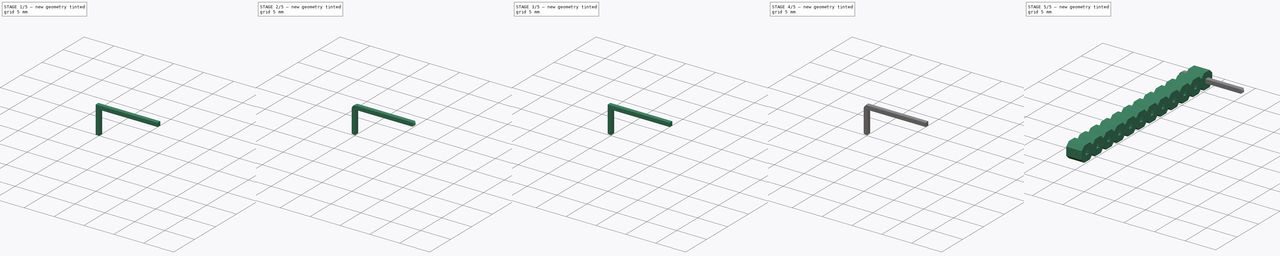
[diagram: build sequence overview — one tinted view per stage of 5, left to right]
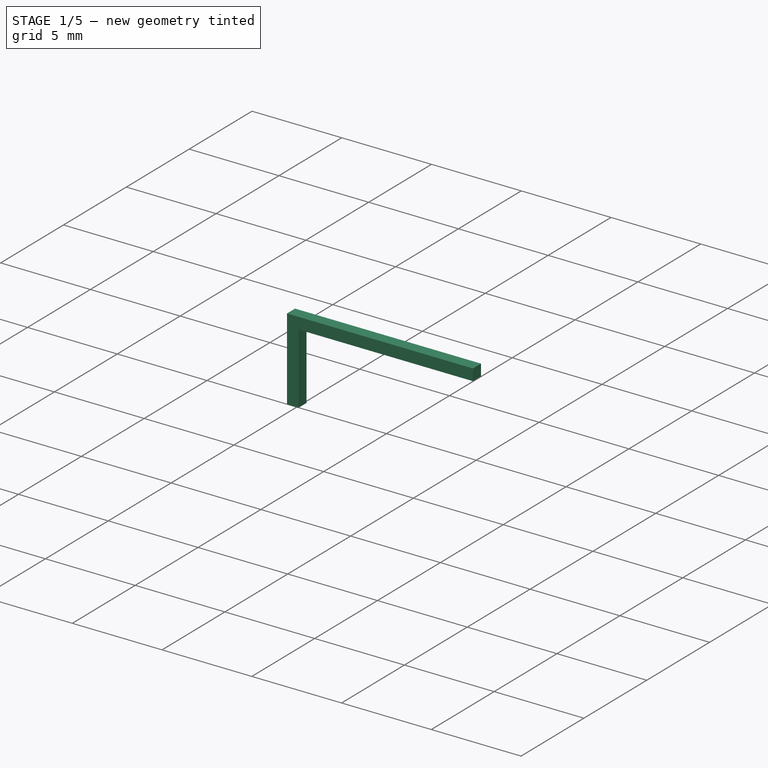
[diagram: stage 1 of 5 — iso view after this stage's code; geometry added in this stage tinted green]
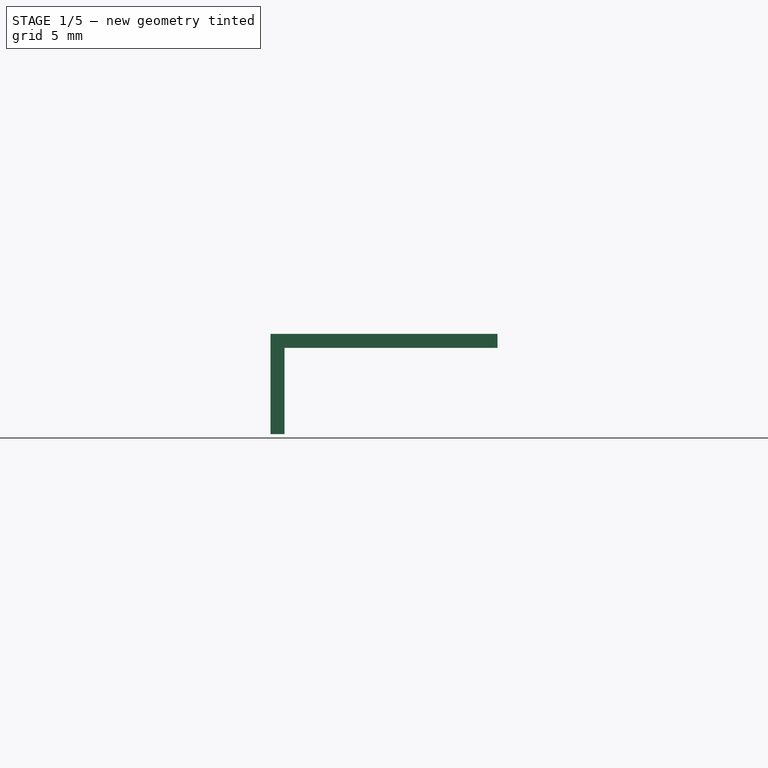
[diagram: stage 1 of 5 — front view after this stage's code; geometry added in this stage tinted green]
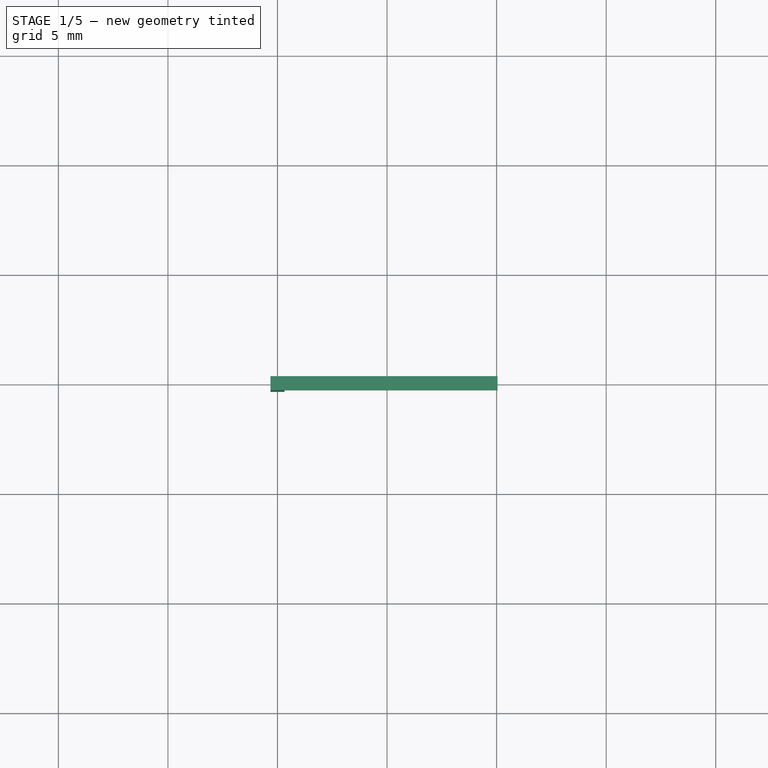
[diagram: stage 1 of 5 — top view after this stage's code; geometry added in this stage tinted green]
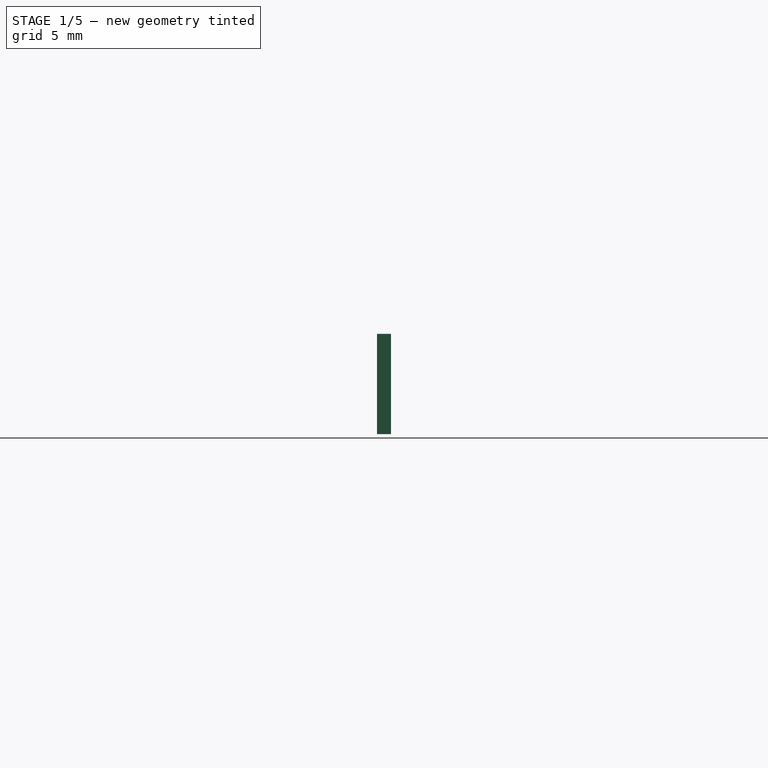
[diagram: stage 1 of 5 — right view after this stage's code; geometry added in this stage tinted green]
FCSTD DOCUMENT  (FreeCAD 1.0R38641 +678 (Git))
Label: Full_PinHeader_1X12_P2.54mm_Horizontal
License: All rights reserved
LicenseURL: https://en.wikipedia.org/wiki/All_rights_reserved
objects: PartDesign::Pad×37, Sketcher::SketchObject×26, PartDesign::Chamfer×25, PartDesign::Body×13, PartDesign::Fillet×12, PartDesign::Pocket×1, PartDesign::LinearPattern×1
note: 292 computed .brp shape members not serialized (recipe doc carries the construction recipe); baked Part::Feature solids carry a one-line shape summary decoded from their .brp

FEATURE [PartDesign::Body] Body009  label="Pin009"
  AllowCompound = false
  Group = -> [Sketch018,Pad025,Pad026,Sketch019,Pad027,Chamfer017,Chamfer018,Fillet008]
  Origin = -> Origin009
  Placement = pos=(0,-20.32,0) rot=(0,0,1;0rad)
  Tip = -> Fillet008
FEATURE [Sketcher::SketchObject] Sketch022
  ArcFitTolerance = 1e-06
  AttachmentSupport = -> [YZ_Plane011]
  FullyConstrained = true
  MakeInternals = false
  MapMode = 5
  Placement = pos=(0,0,0) rot=(0.57735,0.57735,0.57735;2.0944rad)
  sketch-geometry (4):
    g0: LineSegment StartX=-0.32 StartY=1.58 StartZ=0 EndX=-0.32 EndY=0.94 EndZ=0
    g1: LineSegment StartX=-0.32 StartY=0.94 StartZ=0 EndX=0.32 EndY=0.94 EndZ=0
    g2: LineSegment StartX=0.32 StartY=0.94 StartZ=0 EndX=0.32 EndY=1.58 EndZ=0
    g3: LineSegment StartX=0.32 StartY=1.58 StartZ=0 EndX=-0.32 EndY=1.58 EndZ=0
  constraints (11):
    c: Coincident(g0,g1)
    c: Coincident(g1,g2)
    c: Coincident(g2,g3)
    c: Coincident(g3,g0)
    c: Vertical(g0)
    c: Vertical(g2)
    c: Horizontal(g1)
    c: Equal(g3,g2)
    c: Symmetric(g2,g0,g-2)
    c: DistanceY(g2,g2) = 0.64
    c: Distance(g-1,g1) = 0.94
FEATURE [PartDesign::Pad] Pad031
  Direction = (1,0,0)
  Length = 10.04
  Length2 = 10
  Placement = pos=(0,0,0) rot=(1,1,1;2.0944rad)
  Profile = -> Sketch022
  ReferenceAxis = -> Sketch022 [N_Axis]
  Refine = true
  Suppressed = false
  Type = 0
FEATURE [PartDesign::Pad] Pad032
  BaseFeature = -> Pad031
  Direction = (-1,0,-3e-16)
  Length = 0.32
  Length2 = 10
  Placement = pos=(0,0,0) rot=(1,1,1;2.0944rad)
  Profile = -> Pad031 [Face5]
  Refine = true
  Suppressed = false
  Type = 0
FEATURE [Sketcher::SketchObject] Sketch023
  ArcFitTolerance = 1e-06
  AttachmentSupport = -> [Pad032]
  ExternalGeometry = -> [Pad032]
  FullyConstrained = true
  MakeInternals = false
  MapMode = 5
  Placement = pos=(-1e-16,8e-16,0.94) rot=(0.707107,0.707107,0;3.14159rad)
  sketch-geometry (4):
    g0: LineSegment StartX=-0.32 StartY=-0.32 StartZ=0 EndX=0.32 EndY=-0.32 EndZ=0
    g1: LineSegment StartX=0.32 StartY=-0.32 StartZ=0 EndX=0.32 EndY=0.32 EndZ=0
    g2: LineSegment StartX=0.32 StartY=0.32 StartZ=0 EndX=-0.32 EndY=0.32 EndZ=0
    g3: LineSegment StartX=-0.32 StartY=0.32 StartZ=0 EndX=-0.32 EndY=-0.32 EndZ=0
  constraints (11):
    c: Coincident(g0,g1)
    c: Coincident(g1,g2)
    c: Coincident(g2,g3)
    c: Coincident(g3,g0)
    c: Horizontal(g0)
    c: Horizontal(g2)
    c: Vertical(g1)
    c: Vertical(g3)
    c: Coincident(g0,g-5)
    c: PointOnObject(g1,g-4)
    c: Equal(g1,g2)
FEATURE [PartDesign::Pad] Pad033
  BaseFeature = -> Pad032
  Direction = (0,0,-1)
  Length = 3.94
  Length2 = 10
  Placement = pos=(0,0,0) rot=(1,1,1;2.0944rad)
  Profile = -> Sketch023
  ReferenceAxis = -> Sketch023 [N_Axis]
  Refine = true
  Suppressed = false
  Type = 0
FEATURE [PartDesign::Body] Body011  label="Pin011"
  AllowCompound = false
  Group = -> [Sketch022,Pad031,Pad032,Sketch023,Pad033,Chamfer021,Chamfer022,Fillet010]
  Origin = -> Origin011
  Placement = pos=(0,-25.4,0) rot=(0,0,1;0rad)
  Tip = -> Fillet010
FEATURE [Sketcher::SketchObject] Sketch024
  ArcFitTolerance = 1e-06
  AttachmentSupport = -> [YZ_Plane012]
  FullyConstrained = true
  MakeInternals = false
  MapMode = 5
  Placement = pos=(0,0,0) rot=(0.57735,0.57735,0.57735;2.0944rad)
  sketch-geometry (4):
    g0: LineSegment StartX=-0.32 StartY=1.58 StartZ=0 EndX=-0.32 EndY=0.94 EndZ=0
    g1: LineSegment StartX=-0.32 StartY=0.94 StartZ=0 EndX=0.32 EndY=0.94 EndZ=0
    g2: LineSegment StartX=0.32 StartY=0.94 StartZ=0 EndX=0.32 EndY=1.58 EndZ=0
    g3: LineSegment StartX=0.32 StartY=1.58 StartZ=0 EndX=-0.32 EndY=1.58 EndZ=0
  constraints (11):
    c: Coincident(g0,g1)
    c: Coincident(g1,g2)
    c: Coincident(g2,g3)
    c: Coincident(g3,g0)
    c: Vertical(g0)
    c: Vertical(g2)
    c: Horizontal(g1)
    c: Equal(g3,g2)
    c: Symmetric(g2,g0,g-2)
    c: DistanceY(g2,g2) = 0.64
    c: Distance(g-1,g1) = 0.94
FEATURE [PartDesign::Pad] Pad034
  Direction = (1,0,0)
  Length = 10.04
  Length2 = 10
  Placement = pos=(0,0,0) rot=(1,1,1;2.0944rad)
  Profile = -> Sketch024
  ReferenceAxis = -> Sketch024 [N_Axis]
  Refine = true
  Suppressed = false
  Type = 0
FEATURE [PartDesign::Pad] Pad035
  BaseFeature = -> Pad034
  Direction = (-1,0,-3e-16)
  Length = 0.32
  Length2 = 10
  Placement = pos=(0,0,0) rot=(1,1,1;2.0944rad)
  Profile = -> Pad034 [Face5]
  Refine = true
  Suppressed = false
  Type = 0
FEATURE [Sketcher::SketchObject] Sketch025
  ArcFitTolerance = 1e-06
  AttachmentSupport = -> [Pad035]
  ExternalGeometry = -> [Pad035]
  FullyConstrained = true
  MakeInternals = false
  MapMode = 5
  Placement = pos=(-1e-16,8e-16,0.94) rot=(0.707107,0.707107,0;3.14159rad)
  sketch-geometry (4):
    g0: LineSegment StartX=-0.32 StartY=-0.32 StartZ=0 EndX=0.32 EndY=-0.32 EndZ=0
    g1: LineSegment StartX=0.32 StartY=-0.32 StartZ=0 EndX=0.32 EndY=0.32 EndZ=0
    g2: LineSegment StartX=0.32 StartY=0.32 StartZ=0 EndX=-0.32 EndY=0.32 EndZ=0
    g3: LineSegment StartX=-0.32 StartY=0.32 StartZ=0 EndX=-0.32 EndY=-0.32 EndZ=0
  constraints (11):
    c: Coincident(g0,g1)
    c: Coincident(g1,g2)
    c: Coincident(g2,g3)
    c: Coincident(g3,g0)
    c: Horizontal(g0)
    c: Horizontal(g2)
    c: Vertical(g1)
    c: Vertical(g3)
    c: Coincident(g0,g-5)
    c: PointOnObject(g1,g-4)
    c: Equal(g1,g2)
FEATURE [PartDesign::Pad] Pad036
  BaseFeature = -> Pad035
  Direction = (0,0,-1)
  Length = 3.94
  Length2 = 10
  Placement = pos=(0,0,0) rot=(1,1,1;2.0944rad)
  Profile = -> Sketch025
  ReferenceAxis = -> Sketch025 [N_Axis]
  Refine = true
  Suppressed = false
  Type = 0
FEATURE [PartDesign::Chamfer] Chamfer023
  Angle = 45
  Base = -> Pad036 [Face5]
  BaseFeature = -> Pad036
  ChamferType = 0
  FlipDirection = false
  Placement = pos=(0,0,0) rot=(1,1,1;2.0944rad)
  Refine = true
  Size = 0.2
  Size2 = 1
  SupportTransform = false
  Suppressed = false
  UseAllEdges = false
FEATURE [PartDesign::Chamfer] Chamfer024
  Angle = 45
  Base = -> Chamfer023 [Face8]
  BaseFeature = -> Chamfer023
  ChamferType = 0
  FlipDirection = false
  Placement = pos=(0,0,0) rot=(1,1,1;2.0944rad)
  Refine = true
  Size = 0.2
  Size2 = 1
  SupportTransform = false
  Suppressed = false
  UseAllEdges = false
FEATURE [PartDesign::Fillet] Fillet011
  Base = -> Chamfer024 [Edge16]
  BaseFeature = -> Chamfer024
  Placement = pos=(0,0,0) rot=(1,1,1;2.0944rad)
  Radius = 0.64
  Refine = true
  SupportTransform = false
  Suppressed = false
  UseAllEdges = false
FEATURE [PartDesign::Body] Body012  label="Pin012"
  AllowCompound = false
  Group = -> [Sketch024,Pad034,Pad035,Sketch025,Pad036,Chamfer023,Chamfer024,Fillet011]
  Origin = -> Origin012
  Placement = pos=(0,-27.94,0) rot=(0,0,1;0rad)
  Tip = -> Fillet011
FEATURE [Sketcher::SketchObject] Sketch020
  ArcFitTolerance = 1e-06
  AttachmentSupport = -> [YZ_Plane010]
  FullyConstrained = true
  MakeInternals = false
  MapMode = 5
  Placement = pos=(0,0,0) rot=(0.57735,0.57735,0.57735;2.0944rad)
  sketch-geometry (4):
    g0: LineSegment StartX=-0.32 StartY=1.58 StartZ=0 EndX=-0.32 EndY=0.94 EndZ=0
    g1: LineSegment StartX=-0.32 StartY=0.94 StartZ=0 EndX=0.32 EndY=0.94 EndZ=0
    g2: LineSegment StartX=0.32 StartY=0.94 StartZ=0 EndX=0.32 EndY=1.58 EndZ=0
    g3: LineSegment StartX=0.32 StartY=1.58 StartZ=0 EndX=-0.32 EndY=1.58 EndZ=0
  constraints (11):
    c: Coincident(g0,g1)
    c: Coincident(g1,g2)
    c: Coincident(g2,g3)
    c: Coincident(g3,g0)
    c: Vertical(g0)
    c: Vertical(g2)
    c: Horizontal(g1)
    c: Equal(g3,g2)
    c: Symmetric(g2,g0,g-2)
    c: DistanceY(g2,g2) = 0.64
    c: Distance(g-1,g1) = 0.94
FEATURE [PartDesign::Pad] Pad028
  Direction = (1,0,0)
  Length = 10.04
  Length2 = 10
  Placement = pos=(0,0,0) rot=(1,1,1;2.0944rad)
  Profile = -> Sketch020
  ReferenceAxis = -> Sketch020 [N_Axis]
  Refine = true
  Suppressed = false
  Type = 0
FEATURE [PartDesign::Pad] Pad029
  BaseFeature = -> Pad028
  Direction = (-1,0,-3e-16)
  Length = 0.32
  Length2 = 10
  Placement = pos=(0,0,0) rot=(1,1,1;2.0944rad)
  Profile = -> Pad028 [Face5]
  Refine = true
  Suppressed = false
  Type = 0
FEATURE [Sketcher::SketchObject] Sketch021
  ArcFitTolerance = 1e-06
  AttachmentSupport = -> [Pad029]
  ExternalGeometry = -> [Pad029]
  FullyConstrained = true
  MakeInternals = false
  MapMode = 5
  Placement = pos=(-1e-16,8e-16,0.94) rot=(0.707107,0.707107,0;3.14159rad)
  sketch-geometry (4):
    g0: LineSegment StartX=-0.32 StartY=-0.32 StartZ=0 EndX=0.32 EndY=-0.32 EndZ=0
    g1: LineSegment StartX=0.32 StartY=-0.32 StartZ=0 EndX=0.32 EndY=0.32 EndZ=0
    g2: LineSegment StartX=0.32 StartY=0.32 StartZ=0 EndX=-0.32 EndY=0.32 EndZ=0
    g3: LineSegment StartX=-0.32 StartY=0.32 StartZ=0 EndX=-0.32 EndY=-0.32 EndZ=0
  constraints (11):
    c: Coincident(g0,g1)
    c: Coincident(g1,g2)
    c: Coincident(g2,g3)
    c: Coincident(g3,g0)
    c: Horizontal(g0)
    c: Horizontal(g2)
    c: Vertical(g1)
    c: Vertical(g3)
    c: Coincident(g0,g-5)
    c: PointOnObject(g1,g-4)
    c: Equal(g1,g2)
FEATURE [PartDesign::Pad] Pad030
  BaseFeature = -> Pad029
  Direction = (0,0,-1)
  Length = 3.94
  Length2 = 10
  Placement = pos=(0,0,0) rot=(1,1,1;2.0944rad)
  Profile = -> Sketch021
  ReferenceAxis = -> Sketch021 [N_Axis]
  Refine = true
  Suppressed = false
  Type = 0
FEATURE [PartDesign::Chamfer] Chamfer019
  Angle = 45
  Base = -> Pad030 [Face5]
  BaseFeature = -> Pad030
  ChamferType = 0
  FlipDirection = false
  Placement = pos=(0,0,0) rot=(1,1,1;2.0944rad)
  Refine = true
  Size = 0.2
  Size2 = 1
  SupportTransform = false
  Suppressed = false
  UseAllEdges = false
FEATURE [PartDesign::Chamfer] Chamfer020
  Angle = 45
  Base = -> Chamfer019 [Face8]
  BaseFeature = -> Chamfer019
  ChamferType = 0
  FlipDirection = false
  Placement = pos=(0,0,0) rot=(1,1,1;2.0944rad)
  Refine = true
  Size = 0.2
  Size2 = 1
  SupportTransform = false
  Suppressed = false
  UseAllEdges = false
FEATURE [PartDesign::Fillet] Fillet009
  Base = -> Chamfer020 [Edge16]
  BaseFeature = -> Chamfer020
  Placement = pos=(0,0,0) rot=(1,1,1;2.0944rad)
  Radius = 0.64
  Refine = true
  SupportTransform = false
  Suppressed = false
  UseAllEdges = false
FEATURE [PartDesign::Body] Body010  label="Pin010"
  AllowCompound = false
  Group = -> [Sketch020,Pad028,Pad029,Sketch021,Pad030,Chamfer019,Chamfer020,Fillet009]
  Origin = -> Origin010
  Placement = pos=(0,-22.86,0) rot=(0,0,1;0rad)
  Tip = -> Fillet009
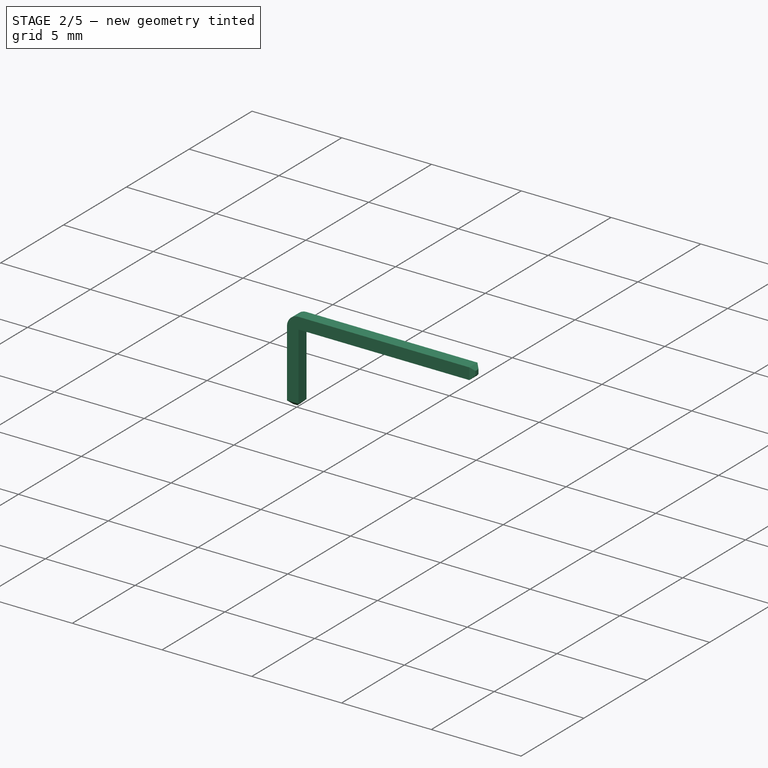
[diagram: stage 2 of 5 — iso view after this stage's code; geometry added in this stage tinted green]
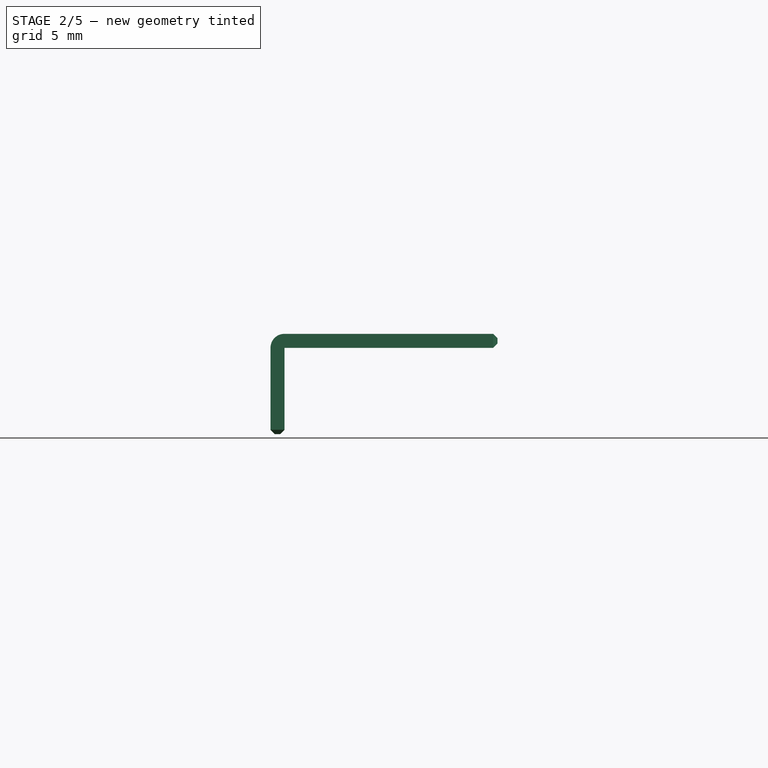
[diagram: stage 2 of 5 — front view after this stage's code; geometry added in this stage tinted green]
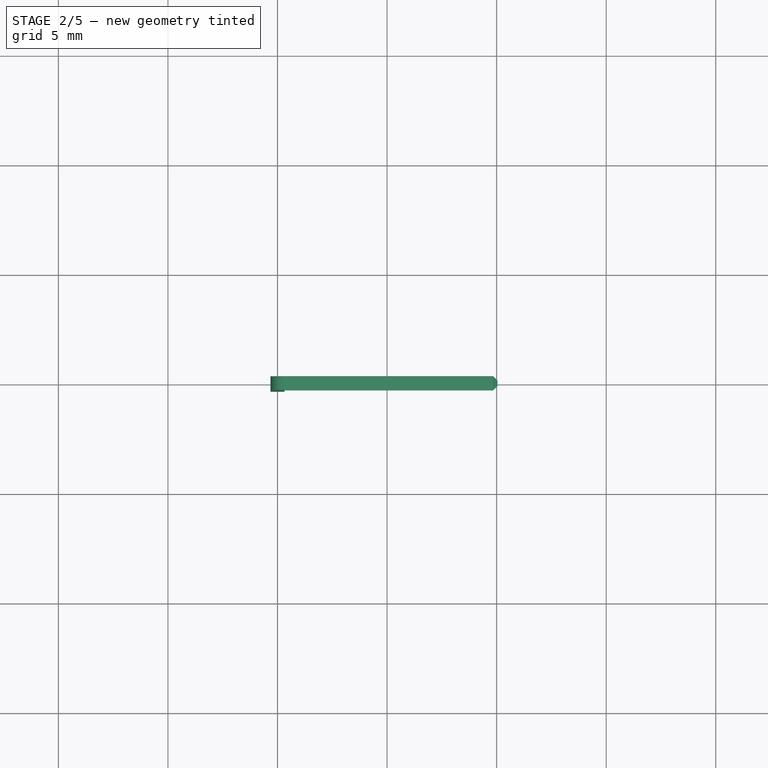
[diagram: stage 2 of 5 — top view after this stage's code; geometry added in this stage tinted green]
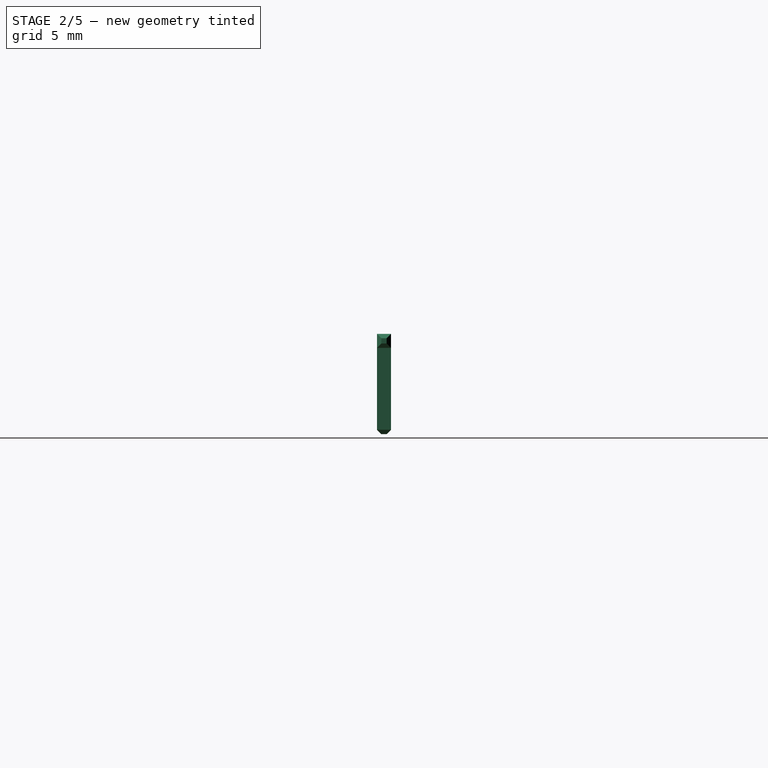
[diagram: stage 2 of 5 — right view after this stage's code; geometry added in this stage tinted green]
FEATURE [PartDesign::Body] Body007  label="Pin007"
  AllowCompound = false
  Group = -> [Sketch014,Pad019,Pad020,Sketch015,Pad021,Chamfer013,Chamfer014,Fillet006]
  Origin = -> Origin007
  Placement = pos=(0,-15.24,0) rot=(0,0,1;0rad)
  Tip = -> Fillet006
FEATURE [Sketcher::SketchObject] Sketch016
  ArcFitTolerance = 1e-06
  AttachmentSupport = -> [YZ_Plane008]
  FullyConstrained = true
  MakeInternals = false
  MapMode = 5
  Placement = pos=(0,0,0) rot=(0.57735,0.57735,0.57735;2.0944rad)
  sketch-geometry (4):
    g0: LineSegment StartX=-0.32 StartY=1.58 StartZ=0 EndX=-0.32 EndY=0.94 EndZ=0
    g1: LineSegment StartX=-0.32 StartY=0.94 StartZ=0 EndX=0.32 EndY=0.94 EndZ=0
    g2: LineSegment StartX=0.32 StartY=0.94 StartZ=0 EndX=0.32 EndY=1.58 EndZ=0
    g3: LineSegment StartX=0.32 StartY=1.58 StartZ=0 EndX=-0.32 EndY=1.58 EndZ=0
  constraints (11):
    c: Coincident(g0,g1)
    c: Coincident(g1,g2)
    c: Coincident(g2,g3)
    c: Coincident(g3,g0)
    c: Vertical(g0)
    c: Vertical(g2)
    c: Horizontal(g1)
    c: Equal(g3,g2)
    c: Symmetric(g2,g0,g-2)
    c: DistanceY(g2,g2) = 0.64
    c: Distance(g-1,g1) = 0.94
FEATURE [PartDesign::Pad] Pad022
  Direction = (1,0,0)
  Length = 10.04
  Length2 = 10
  Placement = pos=(0,0,0) rot=(1,1,1;2.0944rad)
  Profile = -> Sketch016
  ReferenceAxis = -> Sketch016 [N_Axis]
  Refine = true
  Suppressed = false
  Type = 0
FEATURE [PartDesign::Pad] Pad023
  BaseFeature = -> Pad022
  Direction = (-1,0,-3e-16)
  Length = 0.32
  Length2 = 10
  Placement = pos=(0,0,0) rot=(1,1,1;2.0944rad)
  Profile = -> Pad022 [Face5]
  Refine = true
  Suppressed = false
  Type = 0
FEATURE [Sketcher::SketchObject] Sketch017
  ArcFitTolerance = 1e-06
  AttachmentSupport = -> [Pad023]
  ExternalGeometry = -> [Pad023]
  FullyConstrained = true
  MakeInternals = false
  MapMode = 5
  Placement = pos=(-1e-16,8e-16,0.94) rot=(0.707107,0.707107,0;3.14159rad)
  sketch-geometry (4):
    g0: LineSegment StartX=-0.32 StartY=-0.32 StartZ=0 EndX=0.32 EndY=-0.32 EndZ=0
    g1: LineSegment StartX=0.32 StartY=-0.32 StartZ=0 EndX=0.32 EndY=0.32 EndZ=0
    g2: LineSegment StartX=0.32 StartY=0.32 StartZ=0 EndX=-0.32 EndY=0.32 EndZ=0
    g3: LineSegment StartX=-0.32 StartY=0.32 StartZ=0 EndX=-0.32 EndY=-0.32 EndZ=0
  constraints (11):
    c: Coincident(g0,g1)
    c: Coincident(g1,g2)
    c: Coincident(g2,g3)
    c: Coincident(g3,g0)
    c: Horizontal(g0)
    c: Horizontal(g2)
    c: Vertical(g1)
    c: Vertical(g3)
    c: Coincident(g0,g-5)
    c: PointOnObject(g1,g-4)
    c: Equal(g1,g2)
FEATURE [PartDesign::Pad] Pad024
  BaseFeature = -> Pad023
  Direction = (0,0,-1)
  Length = 3.94
  Length2 = 10
  Placement = pos=(0,0,0) rot=(1,1,1;2.0944rad)
  Profile = -> Sketch017
  ReferenceAxis = -> Sketch017 [N_Axis]
  Refine = true
  Suppressed = false
  Type = 0
FEATURE [PartDesign::Chamfer] Chamfer015
  Angle = 45
  Base = -> Pad024 [Face5]
  BaseFeature = -> Pad024
  ChamferType = 0
  FlipDirection = false
  Placement = pos=(0,0,0) rot=(1,1,1;2.0944rad)
  Refine = true
  Size = 0.2
  Size2 = 1
  SupportTransform = false
  Suppressed = false
  UseAllEdges = false
FEATURE [PartDesign::Chamfer] Chamfer016
  Angle = 45
  Base = -> Chamfer015 [Face8]
  BaseFeature = -> Chamfer015
  ChamferType = 0
  FlipDirection = false
  Placement = pos=(0,0,0) rot=(1,1,1;2.0944rad)
  Refine = true
  Size = 0.2
  Size2 = 1
  SupportTransform = false
  Suppressed = false
  UseAllEdges = false
FEATURE [PartDesign::Fillet] Fillet007
  Base = -> Chamfer016 [Edge16]
  BaseFeature = -> Chamfer016
  Placement = pos=(0,0,0) rot=(1,1,1;2.0944rad)
  Radius = 0.64
  Refine = true
  SupportTransform = false
  Suppressed = false
  UseAllEdges = false
FEATURE [PartDesign::Body] Body008  label="Pin008"
  AllowCompound = false
  Group = -> [Sketch016,Pad022,Pad023,Sketch017,Pad024,Chamfer015,Chamfer016,Fillet007]
  Origin = -> Origin008
  Placement = pos=(0,-17.78,0) rot=(0,0,1;0rad)
  Tip = -> Fillet007
FEATURE [Sketcher::SketchObject] Sketch018
  ArcFitTolerance = 1e-06
  AttachmentSupport = -> [YZ_Plane009]
  FullyConstrained = true
  MakeInternals = false
  MapMode = 5
  Placement = pos=(0,0,0) rot=(0.57735,0.57735,0.57735;2.0944rad)
  sketch-geometry (4):
    g0: LineSegment StartX=-0.32 StartY=1.58 StartZ=0 EndX=-0.32 EndY=0.94 EndZ=0
    g1: LineSegment StartX=-0.32 StartY=0.94 StartZ=0 EndX=0.32 EndY=0.94 EndZ=0
    g2: LineSegment StartX=0.32 StartY=0.94 StartZ=0 EndX=0.32 EndY=1.58 EndZ=0
    g3: LineSegment StartX=0.32 StartY=1.58 StartZ=0 EndX=-0.32 EndY=1.58 EndZ=0
  constraints (11):
    c: Coincident(g0,g1)
    c: Coincident(g1,g2)
    c: Coincident(g2,g3)
    c: Coincident(g3,g0)
    c: Vertical(g0)
    c: Vertical(g2)
    c: Horizontal(g1)
    c: Equal(g3,g2)
    c: Symmetric(g2,g0,g-2)
    c: DistanceY(g2,g2) = 0.64
    c: Distance(g-1,g1) = 0.94
FEATURE [PartDesign::Pad] Pad025
  Direction = (1,0,0)
  Length = 10.04
  Length2 = 10
  Placement = pos=(0,0,0) rot=(1,1,1;2.0944rad)
  Profile = -> Sketch018
  ReferenceAxis = -> Sketch018 [N_Axis]
  Refine = true
  Suppressed = false
  Type = 0
FEATURE [PartDesign::Pad] Pad026
  BaseFeature = -> Pad025
  Direction = (-1,0,-3e-16)
  Length = 0.32
  Length2 = 10
  Placement = pos=(0,0,0) rot=(1,1,1;2.0944rad)
  Profile = -> Pad025 [Face5]
  Refine = true
  Suppressed = false
  Type = 0
FEATURE [Sketcher::SketchObject] Sketch019
  ArcFitTolerance = 1e-06
  AttachmentSupport = -> [Pad026]
  ExternalGeometry = -> [Pad026]
  FullyConstrained = true
  MakeInternals = false
  MapMode = 5
  Placement = pos=(-1e-16,8e-16,0.94) rot=(0.707107,0.707107,0;3.14159rad)
  sketch-geometry (4):
    g0: LineSegment StartX=-0.32 StartY=-0.32 StartZ=0 EndX=0.32 EndY=-0.32 EndZ=0
    g1: LineSegment StartX=0.32 StartY=-0.32 StartZ=0 EndX=0.32 EndY=0.32 EndZ=0
    g2: LineSegment StartX=0.32 StartY=0.32 StartZ=0 EndX=-0.32 EndY=0.32 EndZ=0
    g3: LineSegment StartX=-0.32 StartY=0.32 StartZ=0 EndX=-0.32 EndY=-0.32 EndZ=0
  constraints (11):
    c: Coincident(g0,g1)
    c: Coincident(g1,g2)
    c: Coincident(g2,g3)
    c: Coincident(g3,g0)
    c: Horizontal(g0)
    c: Horizontal(g2)
    c: Vertical(g1)
    c: Vertical(g3)
    c: Coincident(g0,g-5)
    c: PointOnObject(g1,g-4)
    c: Equal(g1,g2)
FEATURE [PartDesign::Pad] Pad027
  BaseFeature = -> Pad026
  Direction = (0,0,-1)
  Length = 3.94
  Length2 = 10
  Placement = pos=(0,0,0) rot=(1,1,1;2.0944rad)
  Profile = -> Sketch019
  ReferenceAxis = -> Sketch019 [N_Axis]
  Refine = true
  Suppressed = false
  Type = 0
FEATURE [PartDesign::Chamfer] Chamfer017
  Angle = 45
  Base = -> Pad027 [Face5]
  BaseFeature = -> Pad027
  ChamferType = 0
  FlipDirection = false
  Placement = pos=(0,0,0) rot=(1,1,1;2.0944rad)
  Refine = true
  Size = 0.2
  Size2 = 1
  SupportTransform = false
  Suppressed = false
  UseAllEdges = false
FEATURE [PartDesign::Chamfer] Chamfer018
  Angle = 45
  Base = -> Chamfer017 [Face8]
  BaseFeature = -> Chamfer017
  ChamferType = 0
  FlipDirection = false
  Placement = pos=(0,0,0) rot=(1,1,1;2.0944rad)
  Refine = true
  Size = 0.2
  Size2 = 1
  SupportTransform = false
  Suppressed = false
  UseAllEdges = false
FEATURE [PartDesign::Fillet] Fillet008
  Base = -> Chamfer018 [Edge16]
  BaseFeature = -> Chamfer018
  Placement = pos=(0,0,0) rot=(1,1,1;2.0944rad)
  Radius = 0.64
  Refine = true
  SupportTransform = false
  Suppressed = false
  UseAllEdges = false
FEATURE [PartDesign::Chamfer] Chamfer021
  Angle = 45
  Base = -> Pad033 [Face5]
  BaseFeature = -> Pad033
  ChamferType = 0
  FlipDirection = false
  Placement = pos=(0,0,0) rot=(1,1,1;2.0944rad)
  Refine = true
  Size = 0.2
  Size2 = 1
  SupportTransform = false
  Suppressed = false
  UseAllEdges = false
FEATURE [PartDesign::Chamfer] Chamfer022
  Angle = 45
  Base = -> Chamfer021 [Face8]
  BaseFeature = -> Chamfer021
  ChamferType = 0
  FlipDirection = false
  Placement = pos=(0,0,0) rot=(1,1,1;2.0944rad)
  Refine = true
  Size = 0.2
  Size2 = 1
  SupportTransform = false
  Suppressed = false
  UseAllEdges = false
FEATURE [PartDesign::Fillet] Fillet010
  Base = -> Chamfer022 [Edge16]
  BaseFeature = -> Chamfer022
  Placement = pos=(0,0,0) rot=(1,1,1;2.0944rad)
  Radius = 0.64
  Refine = true
  SupportTransform = false
  Suppressed = false
  UseAllEdges = false
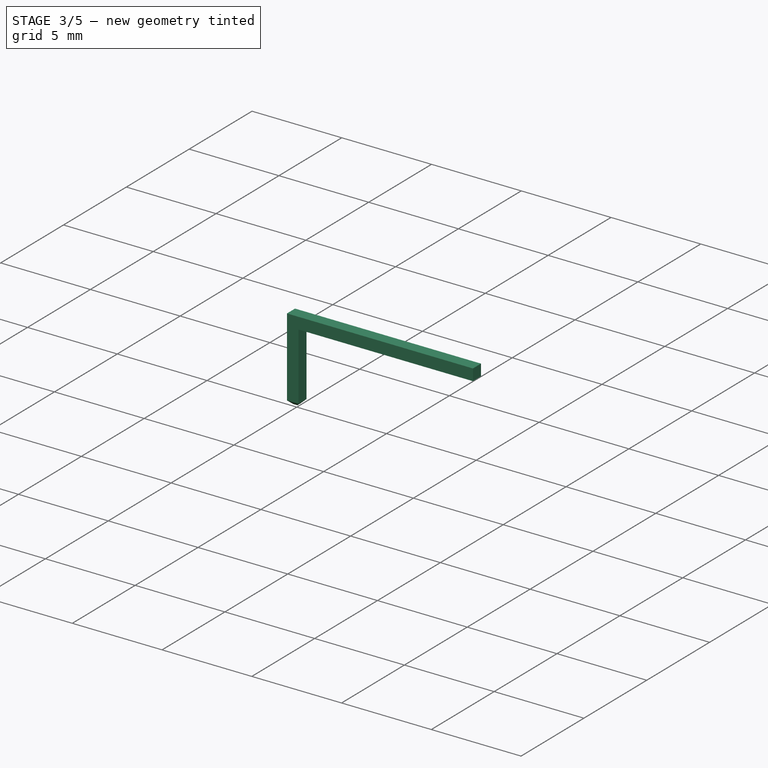
[diagram: stage 3 of 5 — iso view after this stage's code; geometry added in this stage tinted green]
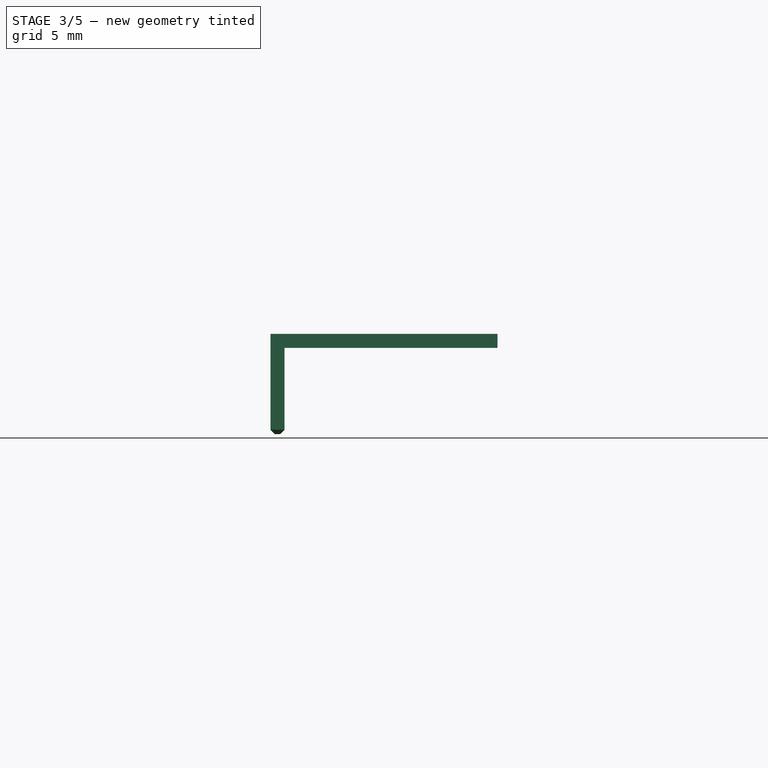
[diagram: stage 3 of 5 — front view after this stage's code; geometry added in this stage tinted green]
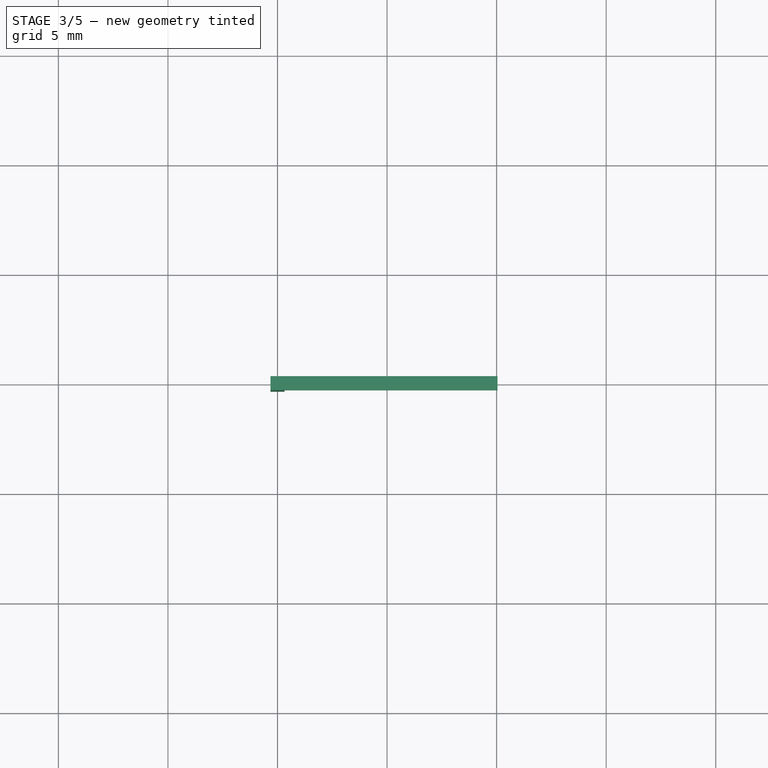
[diagram: stage 3 of 5 — top view after this stage's code; geometry added in this stage tinted green]
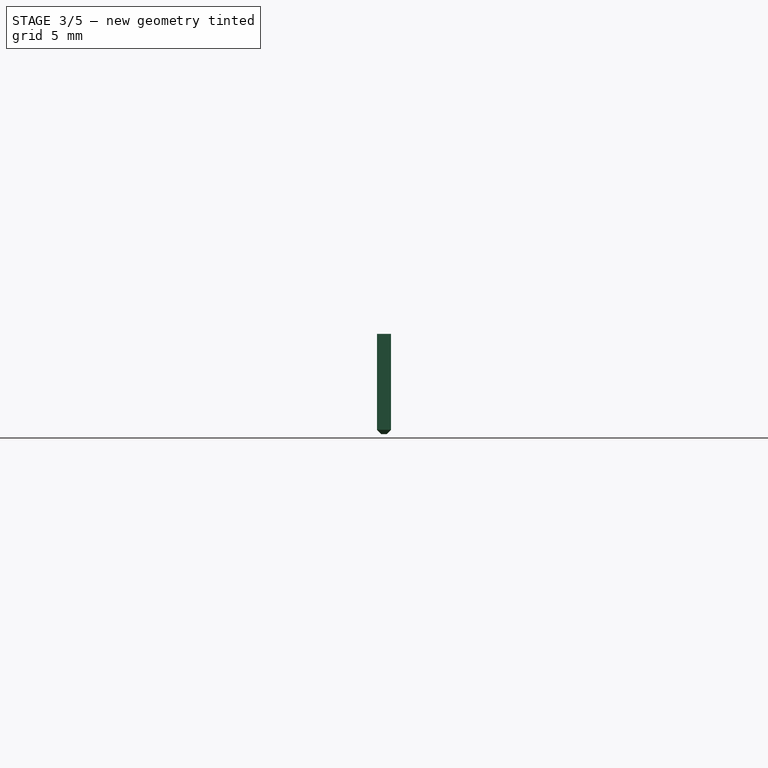
[diagram: stage 3 of 5 — right view after this stage's code; geometry added in this stage tinted green]
FEATURE [PartDesign::Body] Body004  label="Pin004"
  AllowCompound = false
  Group = -> [Sketch008,Pad010,Pad011,Sketch009,Pad012,Chamfer007,Chamfer008,Fillet003]
  Origin = -> Origin004
  Placement = pos=(0,-7.62,0) rot=(0,0,1;0rad)
  Tip = -> Fillet003
FEATURE [Sketcher::SketchObject] Sketch010
  ArcFitTolerance = 1e-06
  AttachmentSupport = -> [YZ_Plane005]
  FullyConstrained = true
  MakeInternals = false
  MapMode = 5
  Placement = pos=(0,0,0) rot=(0.57735,0.57735,0.57735;2.0944rad)
  sketch-geometry (4):
    g0: LineSegment StartX=-0.32 StartY=1.58 StartZ=0 EndX=-0.32 EndY=0.94 EndZ=0
    g1: LineSegment StartX=-0.32 StartY=0.94 StartZ=0 EndX=0.32 EndY=0.94 EndZ=0
    g2: LineSegment StartX=0.32 StartY=0.94 StartZ=0 EndX=0.32 EndY=1.58 EndZ=0
    g3: LineSegment StartX=0.32 StartY=1.58 StartZ=0 EndX=-0.32 EndY=1.58 EndZ=0
  constraints (11):
    c: Coincident(g0,g1)
    c: Coincident(g1,g2)
    c: Coincident(g2,g3)
    c: Coincident(g3,g0)
    c: Vertical(g0)
    c: Vertical(g2)
    c: Horizontal(g1)
    c: Equal(g3,g2)
    c: Symmetric(g2,g0,g-2)
    c: DistanceY(g2,g2) = 0.64
    c: Distance(g-1,g1) = 0.94
FEATURE [PartDesign::Pad] Pad013
  Direction = (1,0,0)
  Length = 10.04
  Length2 = 10
  Placement = pos=(0,0,0) rot=(1,1,1;2.0944rad)
  Profile = -> Sketch010
  ReferenceAxis = -> Sketch010 [N_Axis]
  Refine = true
  Suppressed = false
  Type = 0
FEATURE [PartDesign::Pad] Pad014
  BaseFeature = -> Pad013
  Direction = (-1,0,-3e-16)
  Length = 0.32
  Length2 = 10
  Placement = pos=(0,0,0) rot=(1,1,1;2.0944rad)
  Profile = -> Pad013 [Face5]
  Refine = true
  Suppressed = false
  Type = 0
FEATURE [Sketcher::SketchObject] Sketch011
  ArcFitTolerance = 1e-06
  AttachmentSupport = -> [Pad014]
  ExternalGeometry = -> [Pad014]
  FullyConstrained = true
  MakeInternals = false
  MapMode = 5
  Placement = pos=(-1e-16,8e-16,0.94) rot=(0.707107,0.707107,0;3.14159rad)
  sketch-geometry (4):
    g0: LineSegment StartX=-0.32 StartY=-0.32 StartZ=0 EndX=0.32 EndY=-0.32 EndZ=0
    g1: LineSegment StartX=0.32 StartY=-0.32 StartZ=0 EndX=0.32 EndY=0.32 EndZ=0
    g2: LineSegment StartX=0.32 StartY=0.32 StartZ=0 EndX=-0.32 EndY=0.32 EndZ=0
    g3: LineSegment StartX=-0.32 StartY=0.32 StartZ=0 EndX=-0.32 EndY=-0.32 EndZ=0
  constraints (11):
    c: Coincident(g0,g1)
    c: Coincident(g1,g2)
    c: Coincident(g2,g3)
    c: Coincident(g3,g0)
    c: Horizontal(g0)
    c: Horizontal(g2)
    c: Vertical(g1)
    c: Vertical(g3)
    c: Coincident(g0,g-5)
    c: PointOnObject(g1,g-4)
    c: Equal(g1,g2)
FEATURE [PartDesign::Pad] Pad015
  BaseFeature = -> Pad014
  Direction = (0,0,-1)
  Length = 3.94
  Length2 = 10
  Placement = pos=(0,0,0) rot=(1,1,1;2.0944rad)
  Profile = -> Sketch011
  ReferenceAxis = -> Sketch011 [N_Axis]
  Refine = true
  Suppressed = false
  Type = 0
FEATURE [PartDesign::Chamfer] Chamfer009
  Angle = 45
  Base = -> Pad015 [Face5]
  BaseFeature = -> Pad015
  ChamferType = 0
  FlipDirection = false
  Placement = pos=(0,0,0) rot=(1,1,1;2.0944rad)
  Refine = true
  Size = 0.2
  Size2 = 1
  SupportTransform = false
  Suppressed = false
  UseAllEdges = false
FEATURE [PartDesign::Body] Body005  label="Pin005"
  AllowCompound = false
  Group = -> [Sketch010,Pad013,Pad014,Sketch011,Pad015,Chamfer009,Chamfer010,Fillet004]
  Origin = -> Origin005
  Placement = pos=(0,-10.16,0) rot=(0,0,1;0rad)
  Tip = -> Fillet004
FEATURE [Sketcher::SketchObject] Sketch012
  ArcFitTolerance = 1e-06
  AttachmentSupport = -> [YZ_Plane006]
  FullyConstrained = true
  MakeInternals = false
  MapMode = 5
  Placement = pos=(0,0,0) rot=(0.57735,0.57735,0.57735;2.0944rad)
  sketch-geometry (4):
    g0: LineSegment StartX=-0.32 StartY=1.58 StartZ=0 EndX=-0.32 EndY=0.94 EndZ=0
    g1: LineSegment StartX=-0.32 StartY=0.94 StartZ=0 EndX=0.32 EndY=0.94 EndZ=0
    g2: LineSegment StartX=0.32 StartY=0.94 StartZ=0 EndX=0.32 EndY=1.58 EndZ=0
    g3: LineSegment StartX=0.32 StartY=1.58 StartZ=0 EndX=-0.32 EndY=1.58 EndZ=0
  constraints (11):
    c: Coincident(g0,g1)
    c: Coincident(g1,g2)
    c: Coincident(g2,g3)
    c: Coincident(g3,g0)
    c: Vertical(g0)
    c: Vertical(g2)
    c: Horizontal(g1)
    c: Equal(g3,g2)
    c: Symmetric(g2,g0,g-2)
    c: DistanceY(g2,g2) = 0.64
    c: Distance(g-1,g1) = 0.94
FEATURE [PartDesign::Pad] Pad016
  Direction = (1,0,0)
  Length = 10.04
  Length2 = 10
  Placement = pos=(0,0,0) rot=(1,1,1;2.0944rad)
  Profile = -> Sketch012
  ReferenceAxis = -> Sketch012 [N_Axis]
  Refine = true
  Suppressed = false
  Type = 0
FEATURE [PartDesign::Pad] Pad017
  BaseFeature = -> Pad016
  Direction = (-1,0,-3e-16)
  Length = 0.32
  Length2 = 10
  Placement = pos=(0,0,0) rot=(1,1,1;2.0944rad)
  Profile = -> Pad016 [Face5]
  Refine = true
  Suppressed = false
  Type = 0
FEATURE [Sketcher::SketchObject] Sketch013
  ArcFitTolerance = 1e-06
  AttachmentSupport = -> [Pad017]
  ExternalGeometry = -> [Pad017]
  FullyConstrained = true
  MakeInternals = false
  MapMode = 5
  Placement = pos=(-1e-16,8e-16,0.94) rot=(0.707107,0.707107,0;3.14159rad)
  sketch-geometry (4):
    g0: LineSegment StartX=-0.32 StartY=-0.32 StartZ=0 EndX=0.32 EndY=-0.32 EndZ=0
    g1: LineSegment StartX=0.32 StartY=-0.32 StartZ=0 EndX=0.32 EndY=0.32 EndZ=0
    g2: LineSegment StartX=0.32 StartY=0.32 StartZ=0 EndX=-0.32 EndY=0.32 EndZ=0
    g3: LineSegment StartX=-0.32 StartY=0.32 StartZ=0 EndX=-0.32 EndY=-0.32 EndZ=0
  constraints (11):
    c: Coincident(g0,g1)
    c: Coincident(g1,g2)
    c: Coincident(g2,g3)
    c: Coincident(g3,g0)
    c: Horizontal(g0)
    c: Horizontal(g2)
    c: Vertical(g1)
    c: Vertical(g3)
    c: Coincident(g0,g-5)
    c: PointOnObject(g1,g-4)
    c: Equal(g1,g2)
FEATURE [PartDesign::Pad] Pad018
  BaseFeature = -> Pad017
  Direction = (0,0,-1)
  Length = 3.94
  Length2 = 10
  Placement = pos=(0,0,0) rot=(1,1,1;2.0944rad)
  Profile = -> Sketch013
  ReferenceAxis = -> Sketch013 [N_Axis]
  Refine = true
  Suppressed = false
  Type = 0
FEATURE [PartDesign::Chamfer] Chamfer011
  Angle = 45
  Base = -> Pad018 [Face5]
  BaseFeature = -> Pad018
  ChamferType = 0
  FlipDirection = false
  Placement = pos=(0,0,0) rot=(1,1,1;2.0944rad)
  Refine = true
  Size = 0.2
  Size2 = 1
  SupportTransform = false
  Suppressed = false
  UseAllEdges = false
FEATURE [PartDesign::Chamfer] Chamfer012
  Angle = 45
  Base = -> Chamfer011 [Face8]
  BaseFeature = -> Chamfer011
  ChamferType = 0
  FlipDirection = false
  Placement = pos=(0,0,0) rot=(1,1,1;2.0944rad)
  Refine = true
  Size = 0.2
  Size2 = 1
  SupportTransform = false
  Suppressed = false
  UseAllEdges = false
FEATURE [PartDesign::Fillet] Fillet005
  Base = -> Chamfer012 [Edge16]
  BaseFeature = -> Chamfer012
  Placement = pos=(0,0,0) rot=(1,1,1;2.0944rad)
  Radius = 0.64
  Refine = true
  SupportTransform = false
  Suppressed = false
  UseAllEdges = false
FEATURE [PartDesign::Body] Body006  label="Pin006"
  AllowCompound = false
  Group = -> [Sketch012,Pad016,Pad017,Sketch013,Pad018,Chamfer011,Chamfer012,Fillet005]
  Origin = -> Origin006
  Placement = pos=(0,-12.7,0) rot=(0,0,1;0rad)
  Tip = -> Fillet005
FEATURE [Sketcher::SketchObject] Sketch014
  ArcFitTolerance = 1e-06
  AttachmentSupport = -> [YZ_Plane007]
  FullyConstrained = true
  MakeInternals = false
  MapMode = 5
  Placement = pos=(0,0,0) rot=(0.57735,0.57735,0.57735;2.0944rad)
  sketch-geometry (4):
    g0: LineSegment StartX=-0.32 StartY=1.58 StartZ=0 EndX=-0.32 EndY=0.94 EndZ=0
    g1: LineSegment StartX=-0.32 StartY=0.94 StartZ=0 EndX=0.32 EndY=0.94 EndZ=0
    g2: LineSegment StartX=0.32 StartY=0.94 StartZ=0 EndX=0.32 EndY=1.58 EndZ=0
    g3: LineSegment StartX=0.32 StartY=1.58 StartZ=0 EndX=-0.32 EndY=1.58 EndZ=0
  constraints (11):
    c: Coincident(g0,g1)
    c: Coincident(g1,g2)
    c: Coincident(g2,g3)
    c: Coincident(g3,g0)
    c: Vertical(g0)
    c: Vertical(g2)
    c: Horizontal(g1)
    c: Equal(g3,g2)
    c: Symmetric(g2,g0,g-2)
    c: DistanceY(g2,g2) = 0.64
    c: Distance(g-1,g1) = 0.94
FEATURE [PartDesign::Pad] Pad019
  Direction = (1,0,0)
  Length = 10.04
  Length2 = 10
  Placement = pos=(0,0,0) rot=(1,1,1;2.0944rad)
  Profile = -> Sketch014
  ReferenceAxis = -> Sketch014 [N_Axis]
  Refine = true
  Suppressed = false
  Type = 0
FEATURE [PartDesign::Pad] Pad020
  BaseFeature = -> Pad019
  Direction = (-1,0,-3e-16)
  Length = 0.32
  Length2 = 10
  Placement = pos=(0,0,0) rot=(1,1,1;2.0944rad)
  Profile = -> Pad019 [Face5]
  Refine = true
  Suppressed = false
  Type = 0
FEATURE [Sketcher::SketchObject] Sketch015
  ArcFitTolerance = 1e-06
  AttachmentSupport = -> [Pad020]
  ExternalGeometry = -> [Pad020]
  FullyConstrained = true
  MakeInternals = false
  MapMode = 5
  Placement = pos=(-1e-16,8e-16,0.94) rot=(0.707107,0.707107,0;3.14159rad)
  sketch-geometry (4):
    g0: LineSegment StartX=-0.32 StartY=-0.32 StartZ=0 EndX=0.32 EndY=-0.32 EndZ=0
    g1: LineSegment StartX=0.32 StartY=-0.32 StartZ=0 EndX=0.32 EndY=0.32 EndZ=0
    g2: LineSegment StartX=0.32 StartY=0.32 StartZ=0 EndX=-0.32 EndY=0.32 EndZ=0
    g3: LineSegment StartX=-0.32 StartY=0.32 StartZ=0 EndX=-0.32 EndY=-0.32 EndZ=0
  constraints (11):
    c: Coincident(g0,g1)
    c: Coincident(g1,g2)
    c: Coincident(g2,g3)
    c: Coincident(g3,g0)
    c: Horizontal(g0)
    c: Horizontal(g2)
    c: Vertical(g1)
    c: Vertical(g3)
    c: Coincident(g0,g-5)
    c: PointOnObject(g1,g-4)
    c: Equal(g1,g2)
FEATURE [PartDesign::Pad] Pad021
  BaseFeature = -> Pad020
  Direction = (0,0,-1)
  Length = 3.94
  Length2 = 10
  Placement = pos=(0,0,0) rot=(1,1,1;2.0944rad)
  Profile = -> Sketch015
  ReferenceAxis = -> Sketch015 [N_Axis]
  Refine = true
  Suppressed = false
  Type = 0
FEATURE [PartDesign::Chamfer] Chamfer013
  Angle = 45
  Base = -> Pad021 [Face5]
  BaseFeature = -> Pad021
  ChamferType = 0
  FlipDirection = false
  Placement = pos=(0,0,0) rot=(1,1,1;2.0944rad)
  Refine = true
  Size = 0.2
  Size2 = 1
  SupportTransform = false
  Suppressed = false
  UseAllEdges = false
FEATURE [PartDesign::Chamfer] Chamfer014
  Angle = 45
  Base = -> Chamfer013 [Face8]
  BaseFeature = -> Chamfer013
  ChamferType = 0
  FlipDirection = false
  Placement = pos=(0,0,0) rot=(1,1,1;2.0944rad)
  Refine = true
  Size = 0.2
  Size2 = 1
  SupportTransform = false
  Suppressed = false
  UseAllEdges = false
FEATURE [PartDesign::Fillet] Fillet006
  Base = -> Chamfer014 [Edge16]
  BaseFeature = -> Chamfer014
  Placement = pos=(0,0,0) rot=(1,1,1;2.0944rad)
  Radius = 0.64
  Refine = true
  SupportTransform = false
  Suppressed = false
  UseAllEdges = false
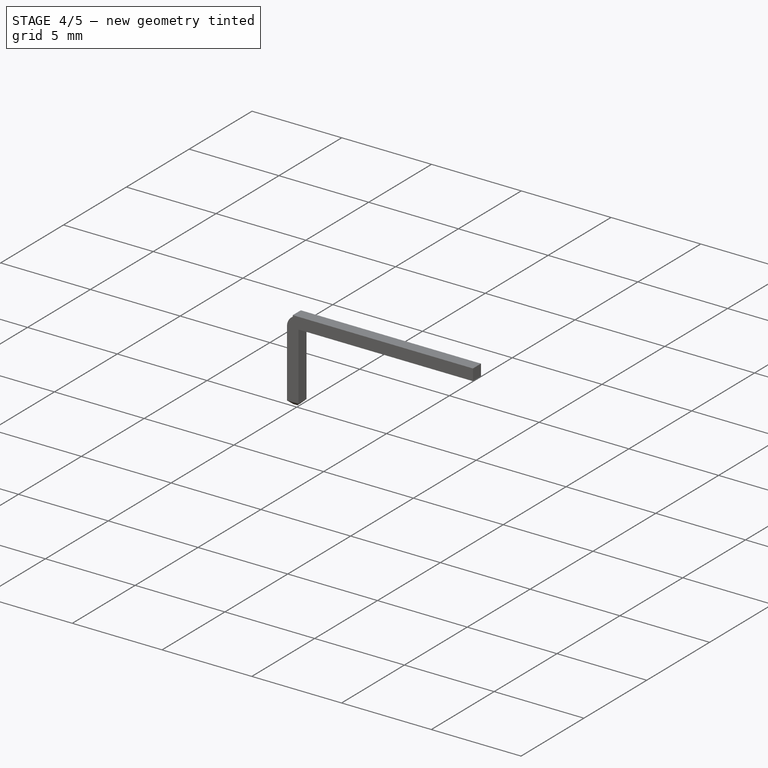
[diagram: stage 4 of 5 — iso view after this stage's code; geometry added in this stage tinted green]
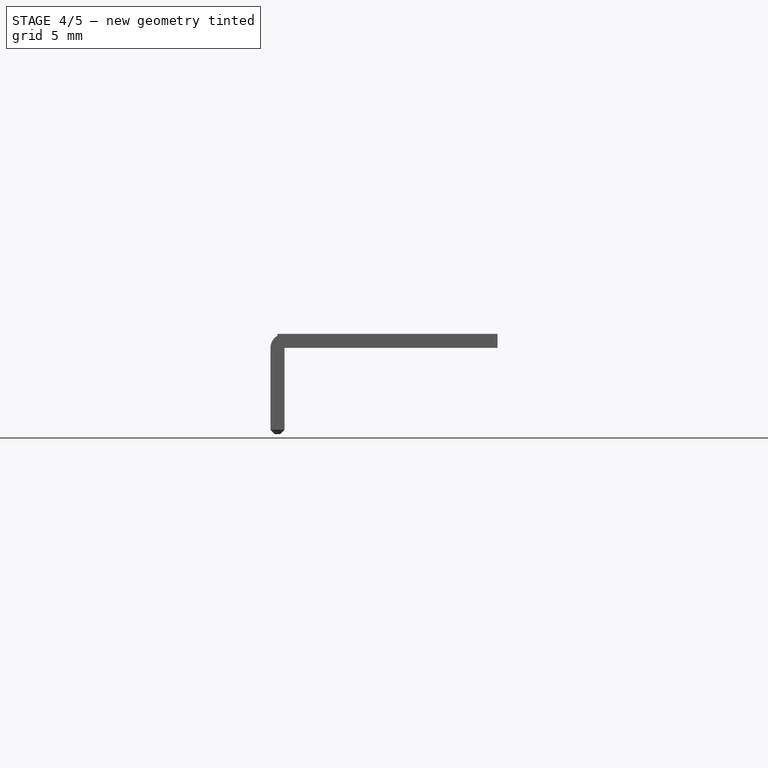
[diagram: stage 4 of 5 — front view after this stage's code; geometry added in this stage tinted green]
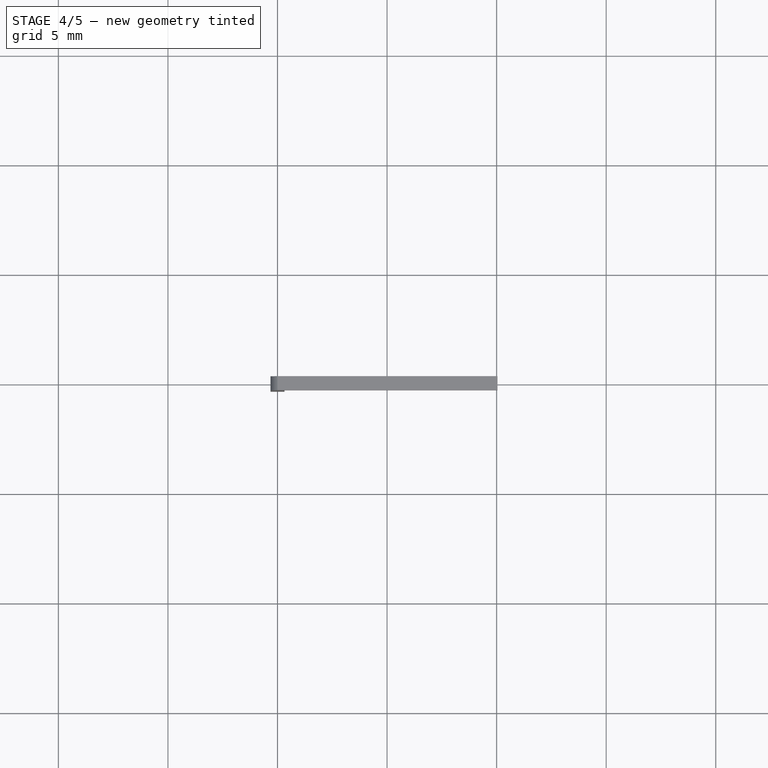
[diagram: stage 4 of 5 — top view after this stage's code; geometry added in this stage tinted green]
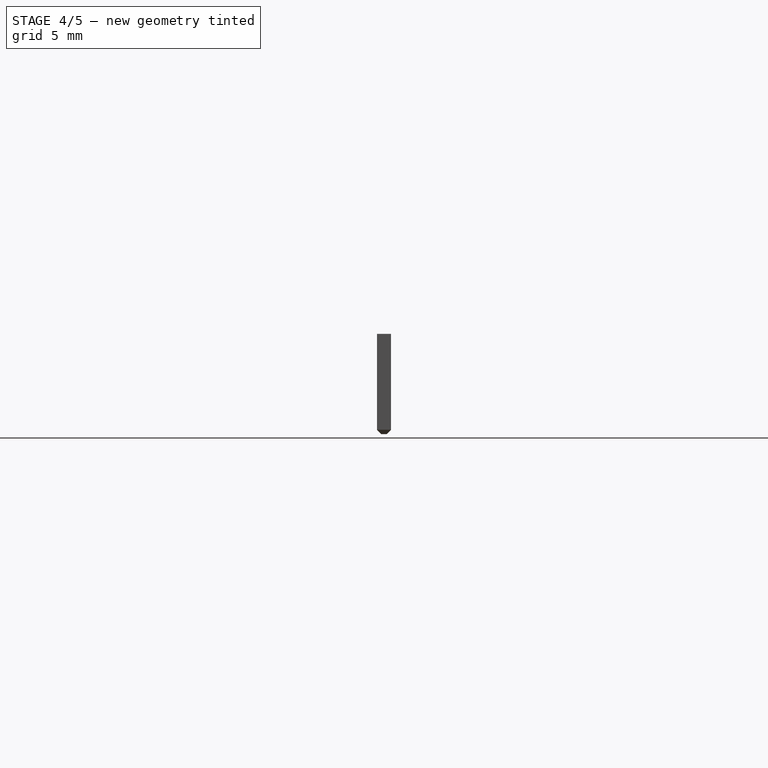
[diagram: stage 4 of 5 — right view after this stage's code; geometry added in this stage tinted green]
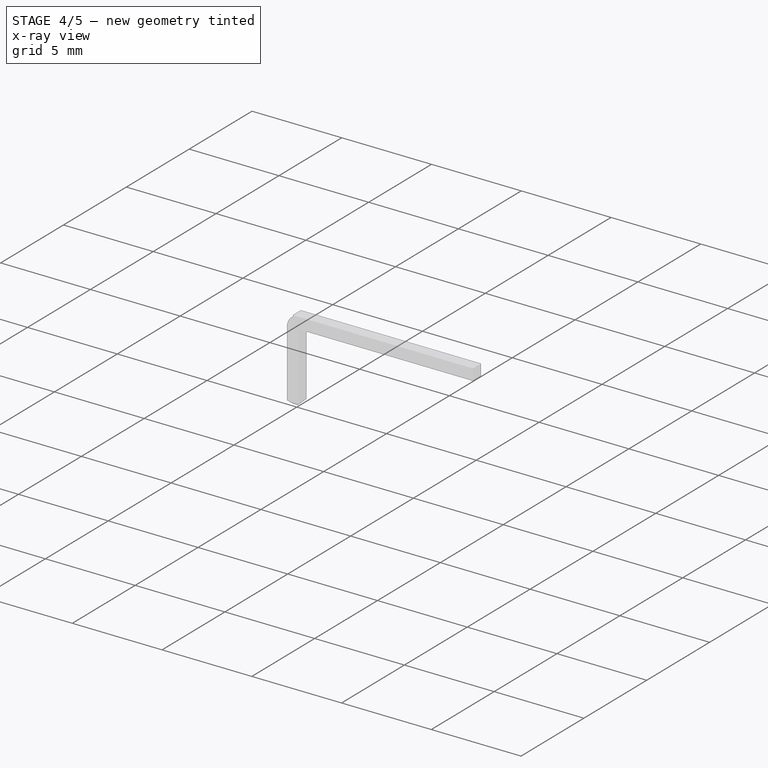
[diagram: stage 4 of 5 — x-ray composite at the iso view; earlier geometry ghosted, this stage's added geometry solid]
FEATURE [PartDesign::Body] Body001  label="Pin001"
  AllowCompound = false
  Group = -> [Sketch002,Pad001,Pad002,Sketch003,Pad003,Chamfer001,Chamfer002,Fillet]
  Origin = -> Origin001
  Tip = -> Fillet
FEATURE [Sketcher::SketchObject] Sketch004
  ArcFitTolerance = 1e-06
  AttachmentSupport = -> [YZ_Plane002]
  FullyConstrained = true
  MakeInternals = false
  MapMode = 5
  Placement = pos=(0,0,0) rot=(0.57735,0.57735,0.57735;2.0944rad)
  sketch-geometry (4):
    g0: LineSegment StartX=-0.32 StartY=1.58 StartZ=0 EndX=-0.32 EndY=0.94 EndZ=0
    g1: LineSegment StartX=-0.32 StartY=0.94 StartZ=0 EndX=0.32 EndY=0.94 EndZ=0
    g2: LineSegment StartX=0.32 StartY=0.94 StartZ=0 EndX=0.32 EndY=1.58 EndZ=0
    g3: LineSegment StartX=0.32 StartY=1.58 StartZ=0 EndX=-0.32 EndY=1.58 EndZ=0
  constraints (11):
    c: Coincident(g0,g1)
    c: Coincident(g1,g2)
    c: Coincident(g2,g3)
    c: Coincident(g3,g0)
    c: Vertical(g0)
    c: Vertical(g2)
    c: Horizontal(g1)
    c: Equal(g3,g2)
    c: Symmetric(g2,g0,g-2)
    c: DistanceY(g2,g2) = 0.64
    c: Distance(g-1,g1) = 0.94
FEATURE [PartDesign::Pad] Pad004
  Direction = (1,0,0)
  Length = 10.04
  Length2 = 10
  Placement = pos=(0,0,0) rot=(1,1,1;2.0944rad)
  Profile = -> Sketch004
  ReferenceAxis = -> Sketch004 [N_Axis]
  Refine = true
  Suppressed = false
  Type = 0
FEATURE [PartDesign::Body] Body002  label="Pin002"
  AllowCompound = false
  Group = -> [Sketch004,Pad004,Pad005,Sketch005,Pad006,Chamfer003,Chamfer004,Fillet001]
  Origin = -> Origin002
  Placement = pos=(0,-2.54,0) rot=(0,0,1;0rad)
  Tip = -> Fillet001
FEATURE [Sketcher::SketchObject] Sketch006
  ArcFitTolerance = 1e-06
  AttachmentSupport = -> [YZ_Plane003]
  FullyConstrained = true
  MakeInternals = false
  MapMode = 5
  Placement = pos=(0,0,0) rot=(0.57735,0.57735,0.57735;2.0944rad)
  sketch-geometry (4):
    g0: LineSegment StartX=-0.32 StartY=1.58 StartZ=0 EndX=-0.32 EndY=0.94 EndZ=0
    g1: LineSegment StartX=-0.32 StartY=0.94 StartZ=0 EndX=0.32 EndY=0.94 EndZ=0
    g2: LineSegment StartX=0.32 StartY=0.94 StartZ=0 EndX=0.32 EndY=1.58 EndZ=0
    g3: LineSegment StartX=0.32 StartY=1.58 StartZ=0 EndX=-0.32 EndY=1.58 EndZ=0
  constraints (11):
    c: Coincident(g0,g1)
    c: Coincident(g1,g2)
    c: Coincident(g2,g3)
    c: Coincident(g3,g0)
    c: Vertical(g0)
    c: Vertical(g2)
    c: Horizontal(g1)
    c: Equal(g3,g2)
    c: Symmetric(g2,g0,g-2)
    c: DistanceY(g2,g2) = 0.64
    c: Distance(g-1,g1) = 0.94
FEATURE [PartDesign::Pad] Pad007
  Direction = (1,0,0)
  Length = 10.04
  Length2 = 10
  Placement = pos=(0,0,0) rot=(1,1,1;2.0944rad)
  Profile = -> Sketch006
  ReferenceAxis = -> Sketch006 [N_Axis]
  Refine = true
  Suppressed = false
  Type = 0
FEATURE [PartDesign::Pad] Pad008
  BaseFeature = -> Pad007
  Direction = (-1,0,-3e-16)
  Length = 0.32
  Length2 = 10
  Placement = pos=(0,0,0) rot=(1,1,1;2.0944rad)
  Profile = -> Pad007 [Face5]
  Refine = true
  Suppressed = false
  Type = 0
FEATURE [Sketcher::SketchObject] Sketch007
  ArcFitTolerance = 1e-06
  AttachmentSupport = -> [Pad008]
  ExternalGeometry = -> [Pad008]
  FullyConstrained = true
  MakeInternals = false
  MapMode = 5
  Placement = pos=(-1e-16,8e-16,0.94) rot=(0.707107,0.707107,0;3.14159rad)
  sketch-geometry (4):
    g0: LineSegment StartX=-0.32 StartY=-0.32 StartZ=0 EndX=0.32 EndY=-0.32 EndZ=0
    g1: LineSegment StartX=0.32 StartY=-0.32 StartZ=0 EndX=0.32 EndY=0.32 EndZ=0
    g2: LineSegment StartX=0.32 StartY=0.32 StartZ=0 EndX=-0.32 EndY=0.32 EndZ=0
    g3: LineSegment StartX=-0.32 StartY=0.32 StartZ=0 EndX=-0.32 EndY=-0.32 EndZ=0
  constraints (11):
    c: Coincident(g0,g1)
    c: Coincident(g1,g2)
    c: Coincident(g2,g3)
    c: Coincident(g3,g0)
    c: Horizontal(g0)
    c: Horizontal(g2)
    c: Vertical(g1)
    c: Vertical(g3)
    c: Coincident(g0,g-5)
    c: PointOnObject(g1,g-4)
    c: Equal(g1,g2)
FEATURE [PartDesign::Pad] Pad009
  BaseFeature = -> Pad008
  Direction = (0,0,-1)
  Length = 3.94
  Length2 = 10
  Placement = pos=(0,0,0) rot=(1,1,1;2.0944rad)
  Profile = -> Sketch007
  ReferenceAxis = -> Sketch007 [N_Axis]
  Refine = true
  Suppressed = false
  Type = 0
FEATURE [PartDesign::Chamfer] Chamfer005
  Angle = 45
  Base = -> Pad009 [Face5]
  BaseFeature = -> Pad009
  ChamferType = 0
  FlipDirection = false
  Placement = pos=(0,0,0) rot=(1,1,1;2.0944rad)
  Refine = true
  Size = 0.2
  Size2 = 1
  SupportTransform = false
  Suppressed = false
  UseAllEdges = false
FEATURE [PartDesign::Chamfer] Chamfer006
  Angle = 45
  Base = -> Chamfer005 [Face8]
  BaseFeature = -> Chamfer005
  ChamferType = 0
  FlipDirection = false
  Placement = pos=(0,0,0) rot=(1,1,1;2.0944rad)
  Refine = true
  Size = 0.2
  Size2 = 1
  SupportTransform = false
  Suppressed = false
  UseAllEdges = false
FEATURE [PartDesign::Fillet] Fillet002
  Base = -> Chamfer006 [Edge16]
  BaseFeature = -> Chamfer006
  Placement = pos=(0,0,0) rot=(1,1,1;2.0944rad)
  Radius = 0.64
  Refine = true
  SupportTransform = false
  Suppressed = false
  UseAllEdges = false
FEATURE [PartDesign::Body] Body003  label="Pin003"
  AllowCompound = false
  Group = -> [Sketch006,Pad007,Pad008,Sketch007,Pad009,Chamfer005,Chamfer006,Fillet002]
  Origin = -> Origin003
  Placement = pos=(0,-5.08,0) rot=(0,0,1;0rad)
  Tip = -> Fillet002
FEATURE [Sketcher::SketchObject] Sketch008
  ArcFitTolerance = 1e-06
  AttachmentSupport = -> [YZ_Plane004]
  FullyConstrained = true
  MakeInternals = false
  MapMode = 5
  Placement = pos=(0,0,0) rot=(0.57735,0.57735,0.57735;2.0944rad)
  sketch-geometry (4):
    g0: LineSegment StartX=-0.32 StartY=1.58 StartZ=0 EndX=-0.32 EndY=0.94 EndZ=0
    g1: LineSegment StartX=-0.32 StartY=0.94 StartZ=0 EndX=0.32 EndY=0.94 EndZ=0
    g2: LineSegment StartX=0.32 StartY=0.94 StartZ=0 EndX=0.32 EndY=1.58 EndZ=0
    g3: LineSegment StartX=0.32 StartY=1.58 StartZ=0 EndX=-0.32 EndY=1.58 EndZ=0
  constraints (11):
    c: Coincident(g0,g1)
    c: Coincident(g1,g2)
    c: Coincident(g2,g3)
    c: Coincident(g3,g0)
    c: Vertical(g0)
    c: Vertical(g2)
    c: Horizontal(g1)
    c: Equal(g3,g2)
    c: Symmetric(g2,g0,g-2)
    c: DistanceY(g2,g2) = 0.64
    c: Distance(g-1,g1) = 0.94
FEATURE [PartDesign::Pad] Pad010
  Direction = (1,0,0)
  Length = 10.04
  Length2 = 10
  Placement = pos=(0,0,0) rot=(1,1,1;2.0944rad)
  Profile = -> Sketch008
  ReferenceAxis = -> Sketch008 [N_Axis]
  Refine = true
  Suppressed = false
  Type = 0
FEATURE [PartDesign::Pad] Pad011
  BaseFeature = -> Pad010
  Direction = (-1,0,-3e-16)
  Length = 0.32
  Length2 = 10
  Placement = pos=(0,0,0) rot=(1,1,1;2.0944rad)
  Profile = -> Pad010 [Face5]
  Refine = true
  Suppressed = false
  Type = 0
FEATURE [Sketcher::SketchObject] Sketch009
  ArcFitTolerance = 1e-06
  AttachmentSupport = -> [Pad011]
  ExternalGeometry = -> [Pad011]
  FullyConstrained = true
  MakeInternals = false
  MapMode = 5
  Placement = pos=(-1e-16,8e-16,0.94) rot=(0.707107,0.707107,0;3.14159rad)
  sketch-geometry (4):
    g0: LineSegment StartX=-0.32 StartY=-0.32 StartZ=0 EndX=0.32 EndY=-0.32 EndZ=0
    g1: LineSegment StartX=0.32 StartY=-0.32 StartZ=0 EndX=0.32 EndY=0.32 EndZ=0
    g2: LineSegment StartX=0.32 StartY=0.32 StartZ=0 EndX=-0.32 EndY=0.32 EndZ=0
    g3: LineSegment StartX=-0.32 StartY=0.32 StartZ=0 EndX=-0.32 EndY=-0.32 EndZ=0
  constraints (11):
    c: Coincident(g0,g1)
    c: Coincident(g1,g2)
    c: Coincident(g2,g3)
    c: Coincident(g3,g0)
    c: Horizontal(g0)
    c: Horizontal(g2)
    c: Vertical(g1)
    c: Vertical(g3)
    c: Coincident(g0,g-5)
    c: PointOnObject(g1,g-4)
    c: Equal(g1,g2)
FEATURE [PartDesign::Pad] Pad012
  BaseFeature = -> Pad011
  Direction = (0,0,-1)
  Length = 3.94
  Length2 = 10
  Placement = pos=(0,0,0) rot=(1,1,1;2.0944rad)
  Profile = -> Sketch009
  ReferenceAxis = -> Sketch009 [N_Axis]
  Refine = true
  Suppressed = false
  Type = 0
FEATURE [PartDesign::Chamfer] Chamfer007
  Angle = 45
  Base = -> Pad012 [Face5]
  BaseFeature = -> Pad012
  ChamferType = 0
  FlipDirection = false
  Placement = pos=(0,0,0) rot=(1,1,1;2.0944rad)
  Refine = true
  Size = 0.2
  Size2 = 1
  SupportTransform = false
  Suppressed = false
  UseAllEdges = false
FEATURE [PartDesign::Chamfer] Chamfer008
  Angle = 45
  Base = -> Chamfer007 [Face8]
  BaseFeature = -> Chamfer007
  ChamferType = 0
  FlipDirection = false
  Placement = pos=(0,0,0) rot=(1,1,1;2.0944rad)
  Refine = true
  Size = 0.2
  Size2 = 1
  SupportTransform = false
  Suppressed = false
  UseAllEdges = false
FEATURE [PartDesign::Fillet] Fillet003
  Base = -> Chamfer008 [Edge16]
  BaseFeature = -> Chamfer008
  Placement = pos=(0,0,0) rot=(1,1,1;2.0944rad)
  Radius = 0.64
  Refine = true
  SupportTransform = false
  Suppressed = false
  UseAllEdges = false
FEATURE [PartDesign::Chamfer] Chamfer010
  Angle = 45
  Base = -> Chamfer009 [Face8]
  BaseFeature = -> Chamfer009
  ChamferType = 0
  FlipDirection = false
  Placement = pos=(0,0,0) rot=(1,1,1;2.0944rad)
  Refine = true
  Size = 0.2
  Size2 = 1
  SupportTransform = false
  Suppressed = false
  UseAllEdges = false
FEATURE [PartDesign::Fillet] Fillet004
  Base = -> Chamfer010 [Edge16]
  BaseFeature = -> Chamfer010
  Placement = pos=(0,0,0) rot=(1,1,1;2.0944rad)
  Radius = 0.64
  Refine = true
  SupportTransform = false
  Suppressed = false
  UseAllEdges = false
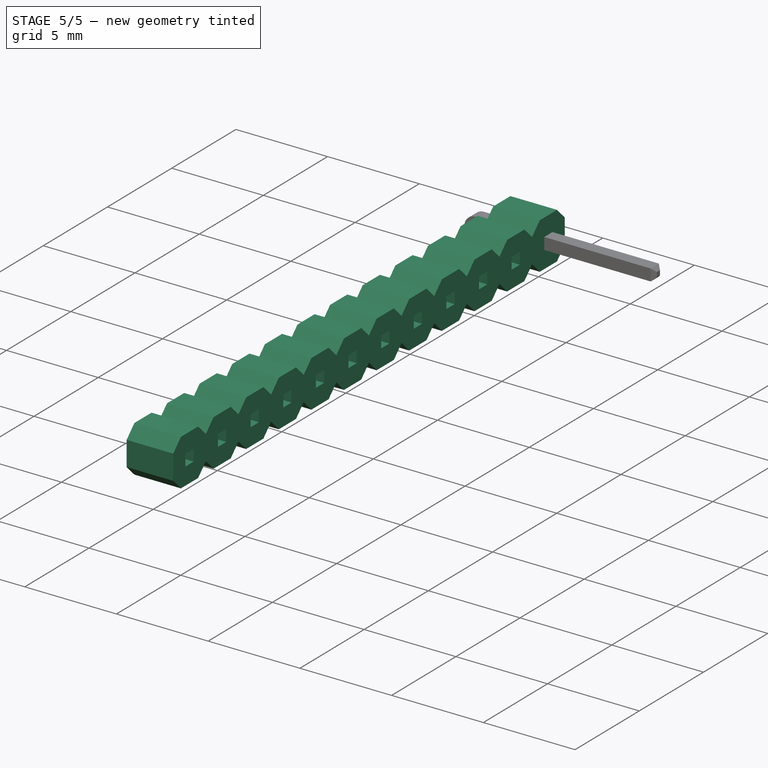
[diagram: stage 5 of 5 — iso view after this stage's code; geometry added in this stage tinted green]
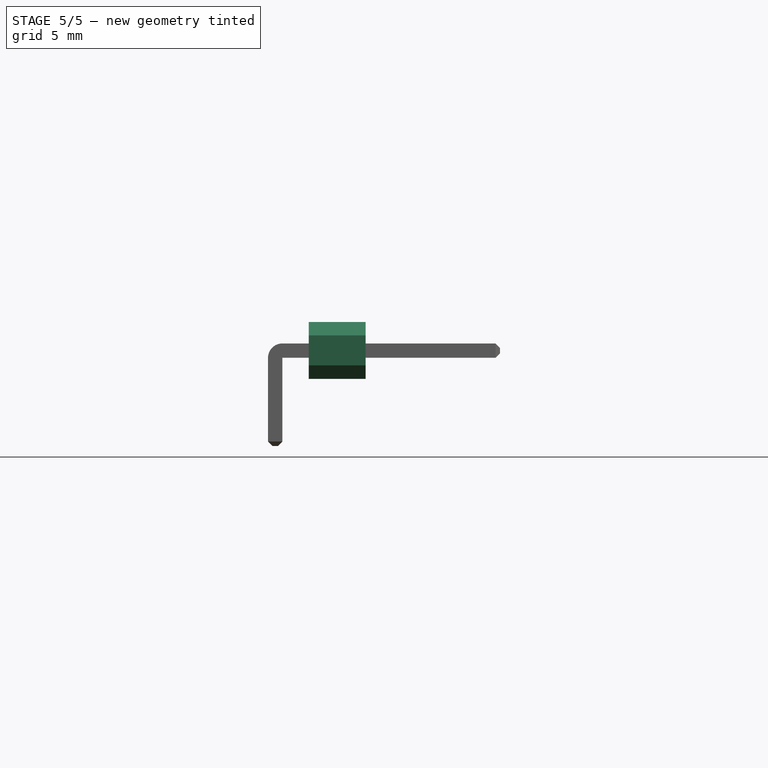
[diagram: stage 5 of 5 — front view after this stage's code; geometry added in this stage tinted green]
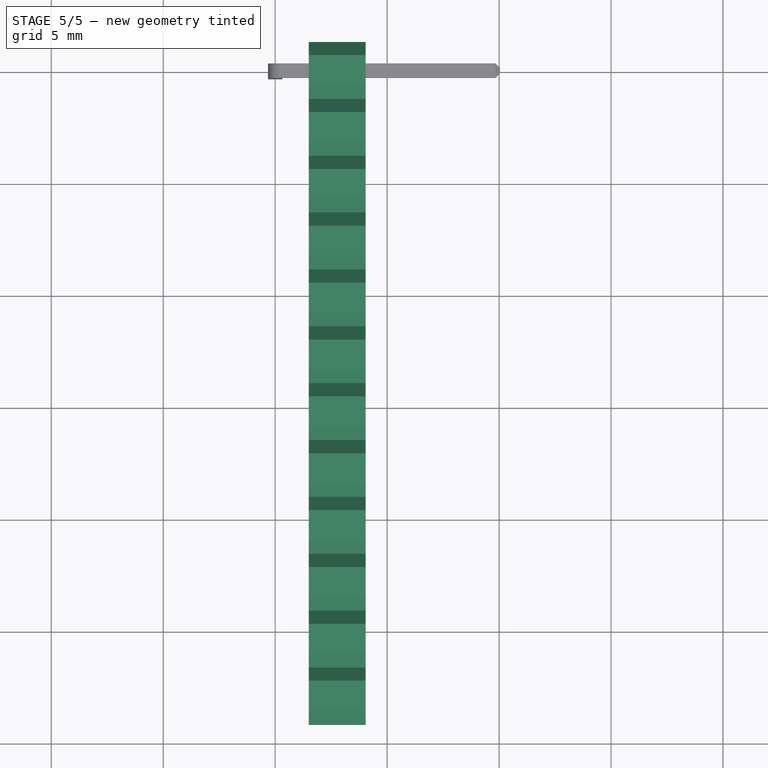
[diagram: stage 5 of 5 — top view after this stage's code; geometry added in this stage tinted green]
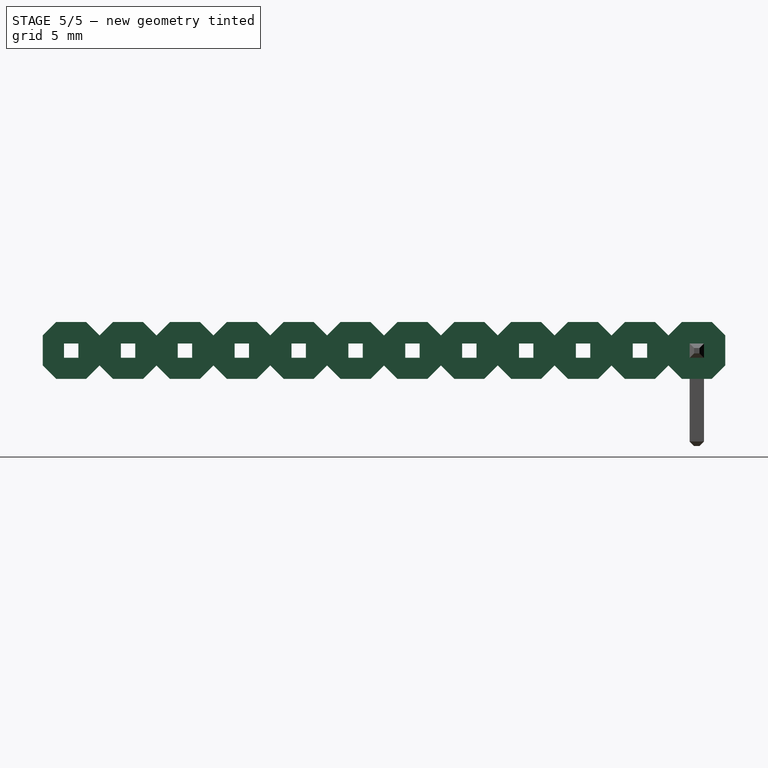
[diagram: stage 5 of 5 — right view after this stage's code; geometry added in this stage tinted green]
FEATURE [Sketcher::SketchObject] Sketch
  ArcFitTolerance = 1e-06
  AttachmentSupport = -> [XY_Plane]
  FullyConstrained = true
  MakeInternals = false
  MapMode = 5
  sketch-geometry (4):
    g0: LineSegment StartX=1.5 StartY=-1.27 StartZ=0 EndX=4.04 EndY=-1.27 EndZ=0
    g1: LineSegment StartX=4.04 StartY=-1.27 StartZ=0 EndX=4.04 EndY=1.27 EndZ=0
    g2: LineSegment StartX=4.04 StartY=1.27 StartZ=0 EndX=1.5 EndY=1.27 EndZ=0
    g3: LineSegment StartX=1.5 StartY=1.27 StartZ=0 EndX=1.5 EndY=-1.27 EndZ=0
  constraints (11):
    c: Coincident(g0,g1)
    c: Coincident(g1,g2)
    c: Coincident(g2,g3)
    c: Coincident(g3,g0)
    c: Horizontal(g0)
    c: Horizontal(g2)
    c: Vertical(g3)
    c: Equal(g1,g2)
    c: DistanceY(g1,g1) = 2.54
    c: Symmetric(g1,g0,g-1)
    c: Distance(g-1,g3) = 1.5
FEATURE [PartDesign::Pad] Pad
  Direction = (0,0,1)
  Length = 2.54
  Length2 = 10
  Profile = -> Sketch
  ReferenceAxis = -> Sketch [N_Axis]
  Refine = true
  Suppressed = false
  Type = 0
FEATURE [Sketcher::SketchObject] Sketch001
  ArcFitTolerance = 1e-06
  AttachmentSupport = -> [Pad]
  FullyConstrained = true
  MakeInternals = false
  MapMode = 5
  Placement = pos=(4.04,0,0) rot=(0.57735,0.57735,0.57735;2.0944rad)
  sketch-geometry (4):
    g0: LineSegment StartX=-0.32 StartY=0.94 StartZ=0 EndX=0.32 EndY=0.94 EndZ=0
    g1: LineSegment StartX=0.32 StartY=0.94 StartZ=0 EndX=0.32 EndY=1.58 EndZ=0
    g2: LineSegment StartX=0.32 StartY=1.58 StartZ=0 EndX=-0.32 EndY=1.58 EndZ=0
    g3: LineSegment StartX=-0.32 StartY=1.58 StartZ=0 EndX=-0.32 EndY=0.94 EndZ=0
  constraints (11):
    c: Coincident(g0,g1)
    c: Coincident(g1,g2)
    c: Coincident(g2,g3)
    c: Coincident(g3,g0)
    c: Horizontal(g0)
    c: Vertical(g1)
    c: Vertical(g3)
    c: Symmetric(g1,g2,g-2)
    c: Equal(g1,g2)
    c: DistanceY(g1,g1) = 0.64
    c: Distance(g-1,g0) = 0.94
FEATURE [PartDesign::Pocket] Pocket
  BaseFeature = -> Pad
  Direction = (-1,0,0)
  Length = 5
  Length2 = 5
  Profile = -> Sketch001
  ReferenceAxis = -> Sketch001 [N_Axis]
  Refine = true
  Suppressed = false
  Type = 1
FEATURE [PartDesign::Chamfer] Chamfer
  Angle = 45
  Base = -> Pocket [Edge4,Edge20,Edge19,Edge3]
  BaseFeature = -> Pocket
  ChamferType = 0
  FlipDirection = false
  Refine = true
  Size = 0.6
  Size2 = 1
  SupportTransform = false
  Suppressed = false
  UseAllEdges = false
FEATURE [PartDesign::LinearPattern] LinearPattern
  BaseFeature = -> Chamfer
  Direction = -> Y_Axis
  Length = 27.94
  Mode = 0
  Occurrences = 12
  Offset = 2.54
  Refine = true
  Reversed = true
  Suppressed = false
  TransformMode = 1
FEATURE [PartDesign::Body] Body
  AllowCompound = false
  Group = -> [Sketch,Pad,Sketch001,Pocket,Chamfer,LinearPattern]
  Origin = -> Origin
  Tip = -> LinearPattern
FEATURE [Sketcher::SketchObject] Sketch002
  ArcFitTolerance = 1e-06
  AttachmentSupport = -> [YZ_Plane001]
  FullyConstrained = true
  MakeInternals = false
  MapMode = 5
  Placement = pos=(0,0,0) rot=(0.57735,0.57735,0.57735;2.0944rad)
  sketch-geometry (4):
    g0: LineSegment StartX=-0.32 StartY=1.58 StartZ=0 EndX=-0.32 EndY=0.94 EndZ=0
    g1: LineSegment StartX=-0.32 StartY=0.94 StartZ=0 EndX=0.32 EndY=0.94 EndZ=0
    g2: LineSegment StartX=0.32 StartY=0.94 StartZ=0 EndX=0.32 EndY=1.58 EndZ=0
    g3: LineSegment StartX=0.32 StartY=1.58 StartZ=0 EndX=-0.32 EndY=1.58 EndZ=0
  constraints (11):
    c: Coincident(g0,g1)
    c: Coincident(g1,g2)
    c: Coincident(g2,g3)
    c: Coincident(g3,g0)
    c: Vertical(g0)
    c: Vertical(g2)
    c: Horizontal(g1)
    c: Equal(g3,g2)
    c: Symmetric(g2,g0,g-2)
    c: DistanceY(g2,g2) = 0.64
    c: Distance(g-1,g1) = 0.94
FEATURE [PartDesign::Pad] Pad001
  Direction = (1,0,0)
  Length = 10.04
  Length2 = 10
  Placement = pos=(0,0,0) rot=(1,1,1;2.0944rad)
  Profile = -> Sketch002
  ReferenceAxis = -> Sketch002 [N_Axis]
  Refine = true
  Suppressed = false
  Type = 0
FEATURE [PartDesign::Pad] Pad002
  BaseFeature = -> Pad001
  Direction = (-1,0,-3e-16)
  Length = 0.32
  Length2 = 10
  Placement = pos=(0,0,0) rot=(1,1,1;2.0944rad)
  Profile = -> Pad001 [Face5]
  Refine = true
  Suppressed = false
  Type = 0
FEATURE [Sketcher::SketchObject] Sketch003
  ArcFitTolerance = 1e-06
  AttachmentSupport = -> [Pad002]
  ExternalGeometry = -> [Pad002]
  FullyConstrained = true
  MakeInternals = false
  MapMode = 5
  Placement = pos=(-1e-16,8e-16,0.94) rot=(0.707107,0.707107,0;3.14159rad)
  sketch-geometry (4):
    g0: LineSegment StartX=-0.32 StartY=-0.32 StartZ=0 EndX=0.32 EndY=-0.32 EndZ=0
    g1: LineSegment StartX=0.32 StartY=-0.32 StartZ=0 EndX=0.32 EndY=0.32 EndZ=0
    g2: LineSegment StartX=0.32 StartY=0.32 StartZ=0 EndX=-0.32 EndY=0.32 EndZ=0
    g3: LineSegment StartX=-0.32 StartY=0.32 StartZ=0 EndX=-0.32 EndY=-0.32 EndZ=0
  constraints (11):
    c: Coincident(g0,g1)
    c: Coincident(g1,g2)
    c: Coincident(g2,g3)
    c: Coincident(g3,g0)
    c: Horizontal(g0)
    c: Horizontal(g2)
    c: Vertical(g1)
    c: Vertical(g3)
    c: Coincident(g0,g-5)
    c: PointOnObject(g1,g-4)
    c: Equal(g1,g2)
FEATURE [PartDesign::Pad] Pad003
  BaseFeature = -> Pad002
  Direction = (0,0,-1)
  Length = 3.94
  Length2 = 10
  Placement = pos=(0,0,0) rot=(1,1,1;2.0944rad)
  Profile = -> Sketch003
  ReferenceAxis = -> Sketch003 [N_Axis]
  Refine = true
  Suppressed = false
  Type = 0
FEATURE [PartDesign::Chamfer] Chamfer001
  Angle = 45
  Base = -> Pad003 [Face5]
  BaseFeature = -> Pad003
  ChamferType = 0
  FlipDirection = false
  Placement = pos=(0,0,0) rot=(1,1,1;2.0944rad)
  Refine = true
  Size = 0.2
  Size2 = 1
  SupportTransform = false
  Suppressed = false
  UseAllEdges = false
FEATURE [PartDesign::Chamfer] Chamfer002
  Angle = 45
  Base = -> Chamfer001 [Face8]
  BaseFeature = -> Chamfer001
  ChamferType = 0
  FlipDirection = false
  Placement = pos=(0,0,0) rot=(1,1,1;2.0944rad)
  Refine = true
  Size = 0.2
  Size2 = 1
  SupportTransform = false
  Suppressed = false
  UseAllEdges = false
FEATURE [PartDesign::Fillet] Fillet
  Base = -> Chamfer002 [Edge16]
  BaseFeature = -> Chamfer002
  Placement = pos=(0,0,0) rot=(1,1,1;2.0944rad)
  Radius = 0.64
  Refine = true
  SupportTransform = false
  Suppressed = false
  UseAllEdges = false
FEATURE [PartDesign::Pad] Pad005
  BaseFeature = -> Pad004
  Direction = (-1,0,-3e-16)
  Length = 0.32
  Length2 = 10
  Placement = pos=(0,0,0) rot=(1,1,1;2.0944rad)
  Profile = -> Pad004 [Face5]
  Refine = true
  Suppressed = false
  Type = 0
FEATURE [Sketcher::SketchObject] Sketch005
  ArcFitTolerance = 1e-06
  AttachmentSupport = -> [Pad005]
  ExternalGeometry = -> [Pad005]
  FullyConstrained = true
  MakeInternals = false
  MapMode = 5
  Placement = pos=(-1e-16,8e-16,0.94) rot=(0.707107,0.707107,0;3.14159rad)
  sketch-geometry (4):
    g0: LineSegment StartX=-0.32 StartY=-0.32 StartZ=0 EndX=0.32 EndY=-0.32 EndZ=0
    g1: LineSegment StartX=0.32 StartY=-0.32 StartZ=0 EndX=0.32 EndY=0.32 EndZ=0
    g2: LineSegment StartX=0.32 StartY=0.32 StartZ=0 EndX=-0.32 EndY=0.32 EndZ=0
    g3: LineSegment StartX=-0.32 StartY=0.32 StartZ=0 EndX=-0.32 EndY=-0.32 EndZ=0
  constraints (11):
    c: Coincident(g0,g1)
    c: Coincident(g1,g2)
    c: Coincident(g2,g3)
    c: Coincident(g3,g0)
    c: Horizontal(g0)
    c: Horizontal(g2)
    c: Vertical(g1)
    c: Vertical(g3)
    c: Coincident(g0,g-5)
    c: PointOnObject(g1,g-4)
    c: Equal(g1,g2)
FEATURE [PartDesign::Pad] Pad006
  BaseFeature = -> Pad005
  Direction = (0,0,-1)
  Length = 3.94
  Length2 = 10
  Placement = pos=(0,0,0) rot=(1,1,1;2.0944rad)
  Profile = -> Sketch005
  ReferenceAxis = -> Sketch005 [N_Axis]
  Refine = true
  Suppressed = false
  Type = 0
FEATURE [PartDesign::Chamfer] Chamfer003
  Angle = 45
  Base = -> Pad006 [Face5]
  BaseFeature = -> Pad006
  ChamferType = 0
  FlipDirection = false
  Placement = pos=(0,0,0) rot=(1,1,1;2.0944rad)
  Refine = true
  Size = 0.2
  Size2 = 1
  SupportTransform = false
  Suppressed = false
  UseAllEdges = false
FEATURE [PartDesign::Chamfer] Chamfer004
  Angle = 45
  Base = -> Chamfer003 [Face8]
  BaseFeature = -> Chamfer003
  ChamferType = 0
  FlipDirection = false
  Placement = pos=(0,0,0) rot=(1,1,1;2.0944rad)
  Refine = true
  Size = 0.2
  Size2 = 1
  SupportTransform = false
  Suppressed = false
  UseAllEdges = false
FEATURE [PartDesign::Fillet] Fillet001
  Base = -> Chamfer004 [Edge16]
  BaseFeature = -> Chamfer004
  Placement = pos=(0,0,0) rot=(1,1,1;2.0944rad)
  Radius = 0.64
  Refine = true
  SupportTransform = false
  Suppressed = false
  UseAllEdges = false
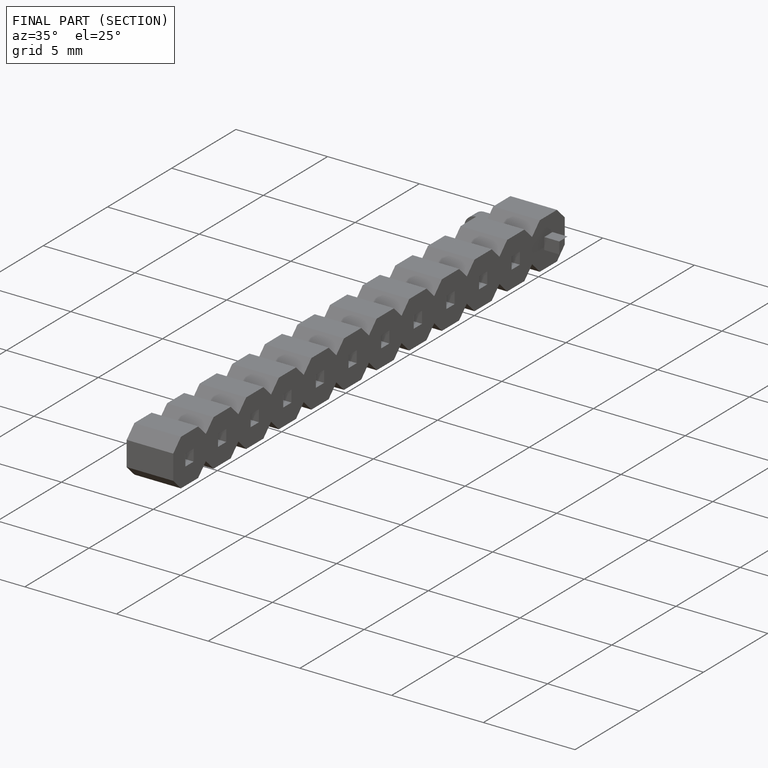
[diagram: finished part — half-section view (interior)]
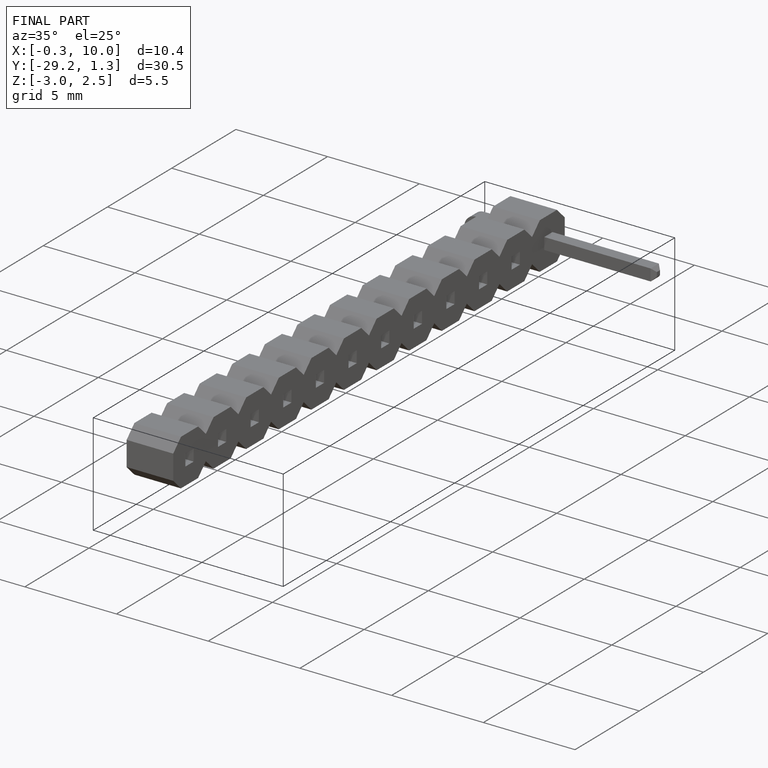
[diagram: finished part — iso view with bounding-box wireframe]
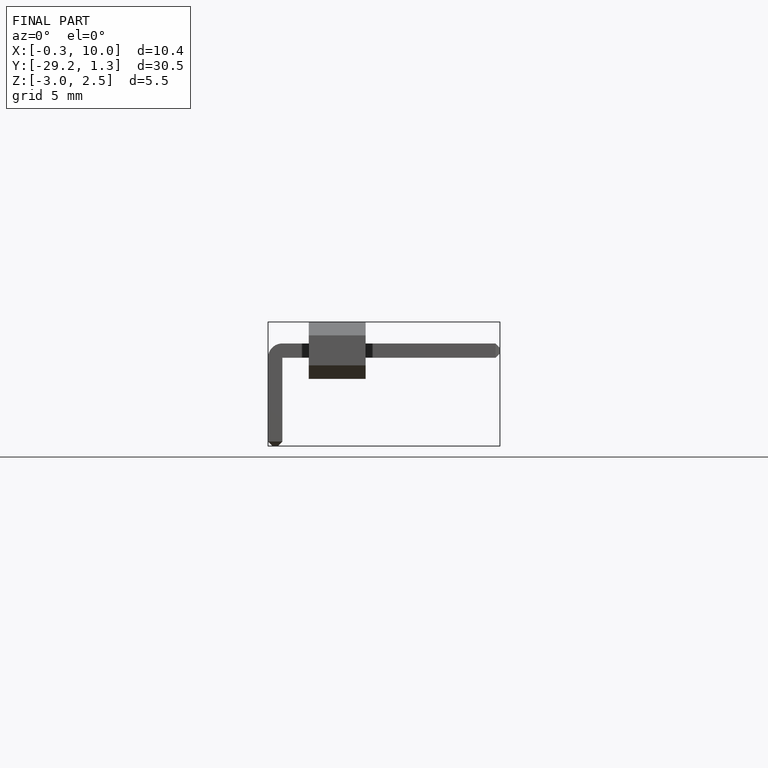
[diagram: finished part — front view with bounding-box wireframe]
